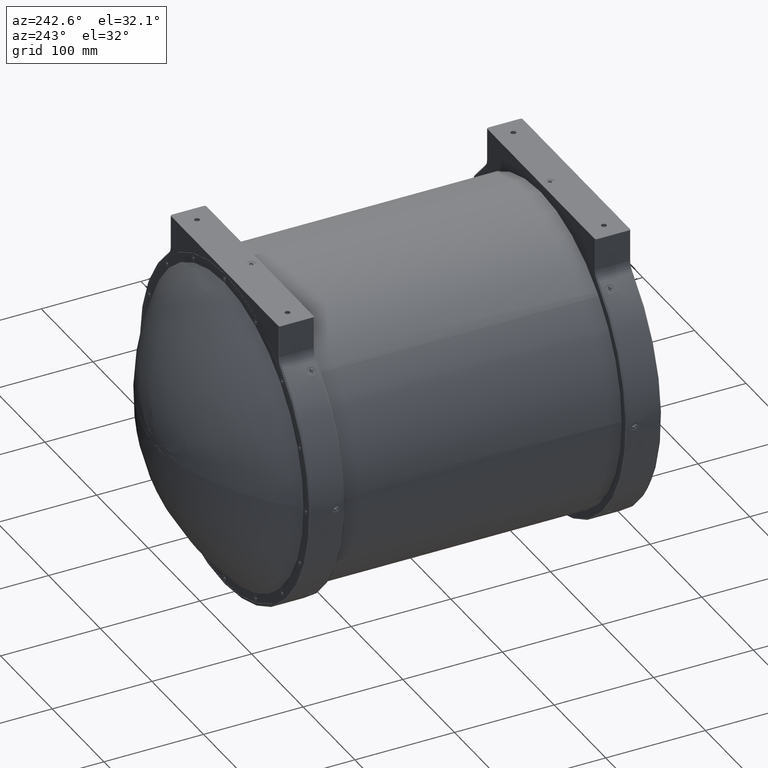
[diagram: clean part render]
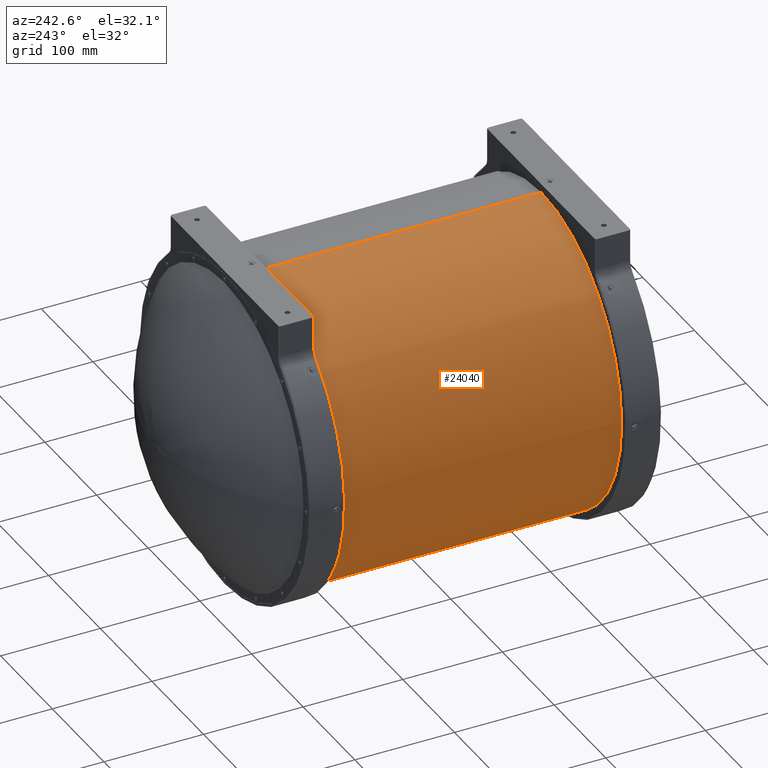
[diagram: same view with one face highlighted and labeled with its STEP entity id]
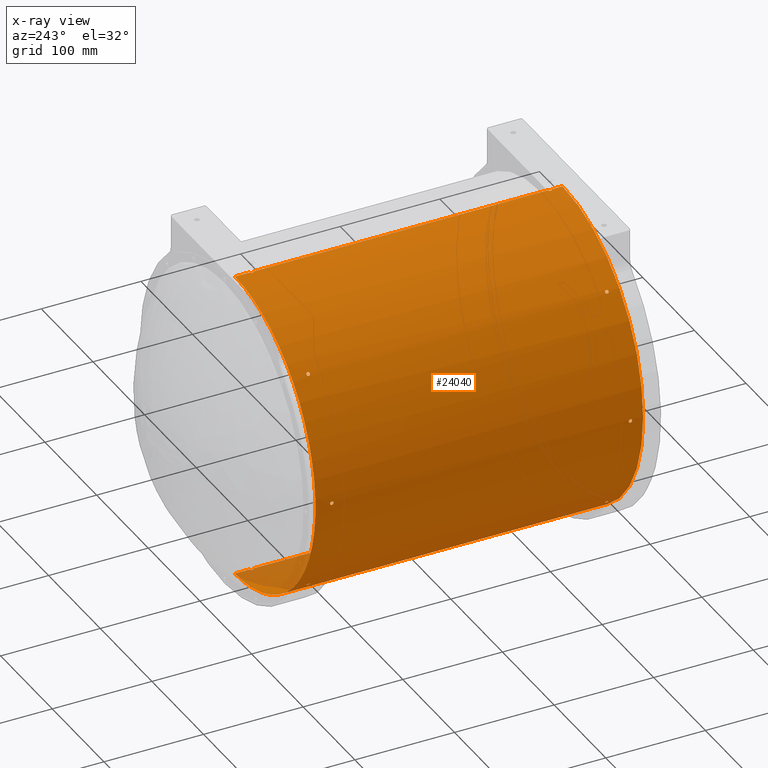
[diagram: x-ray of the same camera — body ghosted, the highlighted face saturated]
A machine part, auxiliary view. The second image highlights one B-rep face of the part: STEP entity #24040.
The next image is the same camera in x-ray: the body ghosted, the highlighted face saturated — about 1% of this face is hidden behind the body in this view.
In plain terms, the highlighted cylindrical surface (partial cylindrical patch) has radius 156.21 mm, axis along (-0, -1, 0).
Its self-contained STEP definition (entity closure, byte-faithful):
#24 = CARTESIAN_POINT ( 'NONE',  ( -156.2028262667691649, 147.7235107876475411, -1.498358640530710106 ) ) ;
#71 = CARTESIAN_POINT ( 'NONE',  ( -110.7735063030128231, -152.8019069854859140, 110.1399413045381266 ) ) ;
#171 = CARTESIAN_POINT ( 'NONE',  ( -156.2100021122912210, 150.3173910381696601, 0.2263052806837820008 ) ) ;
#307 = CARTESIAN_POINT ( 'NONE',  ( -111.0677932016801464, -152.6286719375719656, 109.8431526007023677 ) ) ;
#456 = ORIENTED_EDGE ( 'NONE', *, *, #13050, .T. ) ;
#498 = CARTESIAN_POINT ( 'NONE',  ( -156.2090381173207447, -149.4915282858786156, -0.5580436820609175896 ) ) ;
#518 = B_SPLINE_CURVE_WITH_KNOTS ( 'NONE', 3,
 ( #47726, #32031, #20600, #529, #4347, #11989, #12251, #35584, #38871, #39127, #35105, #20082, #47472, #16311 ),
 .UNSPECIFIED., .F., .F.,
 ( 4, 2, 2, 2, 2, 2, 4 ),
 ( 1.548246979587584347E-17, 0.0003375800536208735598, 0.0006751601072417316154, 0.001012740160862589563, 0.001350320214483447401, 0.002025480321725163079, 0.002700640428966878323 ),
 .UNSPECIFIED. ) ;
#529 = CARTESIAN_POINT ( 'NONE',  ( -0.4472023027985397303, -149.4579049754046878, -156.2093988855038731 ) ) ;
#562 = CARTESIAN_POINT ( 'NONE',  ( -111.6099563456899375, -151.6868013781503635, -109.2921937948843265 ) ) ;
#597 = CARTESIAN_POINT ( 'NONE',  ( -110.7736539763492090, -149.4581748197769855, 110.1397924001192905 ) ) ;
#640 = ORIENTED_EDGE ( 'NONE', *, *, #39467, .T. ) ;
#819 = CARTESIAN_POINT ( 'NONE',  ( -109.3925781383677247, -151.9964892123524862, -111.5115772491055708 ) ) ;
#857 = CARTESIAN_POINT ( 'NONE',  ( -109.2290832658674873, -151.1299999999999955, 111.6717129307963461 ) ) ;
#949 = CARTESIAN_POINT ( 'NONE',  ( -110.8510666071687609, 150.2284717141214117, 110.0618736636020003 ) ) ;
#997 = CARTESIAN_POINT ( 'NONE',  ( -110.5363769653856565, 146.8627601767385329, 110.3779242356251302 ) ) ;
#1013 = CARTESIAN_POINT ( 'NONE',  ( -156.2099989337129387, -149.4028964362973397, -0.1153326924570990814 ) ) ;
#1325 = ORIENTED_EDGE ( 'NONE', *, *, #29615, .T. ) ;
#1351 = CARTESIAN_POINT ( 'NONE',  ( -110.2962399435458849, 150.3058563431194727, -110.6178816445562205 ) ) ;
#1373 = CARTESIAN_POINT ( 'NONE',  ( -110.3755970062426144, -149.4028964362973113, -110.5387020641008604 ) ) ;
#1412 = DIRECTION ( 'NONE',  ( 1.225952931808312809E-39, 1.000000000000000000, -2.208461945956740964E-23 ) ) ;
#1570 = CARTESIAN_POINT ( 'NONE',  ( -109.2290832658651567, -151.1299999999999955, -111.6717129307986340 ) ) ;
#1572 = CARTESIAN_POINT ( 'NONE',  ( -111.6638822240538076, 148.3636653109581687, -109.2370907159882165 ) ) ;
#1610 = CARTESIAN_POINT ( 'NONE',  ( -109.6476461208425945, -149.8281516386314820, 111.2607934779036043 ) ) ;
#1741 = CARTESIAN_POINT ( 'NONE',  ( -156.2039761065398125, -152.1835754937822571, -1.373266488951562447 ) ) ;
#1790 = EDGE_CURVE ( 'NONE', #17136, #49954, #35921, .T. ) ;
#1987 = CARTESIAN_POINT ( 'NONE',  ( -156.2064732725650629, -152.5108687770584197, 1.061704030803598986 ) ) ;
#2178 = CARTESIAN_POINT ( 'NONE',  ( -109.3541355124473569, 147.8240119449709482, 111.5492672603036937 ) ) ;
#2230 = CARTESIAN_POINT ( 'NONE',  ( -0.4472023027985211896, 150.2620950245953679, -156.2093988855037878 ) ) ;
#2259 = CARTESIAN_POINT ( 'NONE',  ( -156.2039856835585852, -150.0671507032394061, 1.380006256348528471 ) ) ;
#2826 = CARTESIAN_POINT ( 'NONE',  ( -156.2058582182974646, 147.2877874764301112, -1.140377712528714227 ) ) ;
#3082 = CARTESIAN_POINT ( 'NONE',  ( -110.7772728753817546, 146.9082098580237812, -110.1362933988530273 ) ) ;
#3174 = CARTESIAN_POINT ( 'NONE',  ( -1.053191725956694080, -149.7563981374004243, 156.2064778509623295 ) ) ;
#3226 = CARTESIAN_POINT ( 'NONE',  ( -1.140795661588198673, 147.2881555685765704, -156.2058551454691724 ) ) ;
#3230 = CARTESIAN_POINT ( 'NONE',  ( -156.2004509601686095, 148.8181905841733794, 1.727199999998348945 ) ) ;
#3330 = CARTESIAN_POINT ( 'NONE',  ( -156.2004509601684390, 148.4772726743486260, -1.727200000001620550 ) ) ;
#3383 = CARTESIAN_POINT ( 'NONE',  ( -109.3541355124473995, -151.8959880550291075, 111.5492672603037221 ) ) ;
#3414 = B_SPLINE_CURVE_WITH_KNOTS ( 'NONE', 3,
 ( #20155, #47036, #43751, #28033, #19896, #39185, #35397, #16378, #42993, #39430, #597, #32609, #16116, #20663, #8737, #12809, #36162, #47285, #1610, #8493, #40178, #17126, #48054, #857 ),
 .UNSPECIFIED., .F., .F.,
 ( 4, 2, 2, 2, 2, 2, 2, 2, 2, 2, 2, 4 ),
 ( 0.005400058096633743657, 0.006074912959233787907, 0.006749767821833832157, 0.007087195253133874231, 0.007424622684433915439, 0.007762050115733956646, 0.008099477547033998720, 0.008774332409634051644, 0.009111759840934093718, 0.009449187272234135793, 0.01012404213483426157, 0.01079889699743438909 ),
 .UNSPECIFIED. ) ;
#3474 = CARTESIAN_POINT ( 'NONE',  ( -1.552581274098413067, 147.8248137191235685, -156.2022902013604266 ) ) ;
#3541 = CARTESIAN_POINT ( 'NONE',  ( -0.7653915209743575865, -152.6824901493119455, -156.2081599290962970 ) ) ;
#3574 = CARTESIAN_POINT ( 'NONE',  ( -156.2005759366097379, 148.3636653109581687, 1.716000731879402608 ) ) ;
#3795 = CARTESIAN_POINT ( 'NONE',  ( -1.727199999999988744, 148.5900000000000318, 156.2004509601685243 ) ) ;
#3971 = CARTESIAN_POINT ( 'NONE',  ( -156.2099989337128818, 150.3171035637027444, -0.1153326924571011214 ) ) ;
#4150 = ORIENTED_EDGE ( 'NONE', *, *, #9742, .F. ) ;
#4220 = CARTESIAN_POINT ( 'NONE',  ( -1.498465602352538006, 147.7236947455537006, -156.2028252380436300 ) ) ;
#4255 = CARTESIAN_POINT ( 'NONE',  ( -111.2621600401552229, 149.8901269966932546, 109.6462592779403877 ) ) ;
#4347 = CARTESIAN_POINT ( 'NONE',  ( -0.5569247132918760945, -149.4911345978756287, -156.2090422438848236 ) ) ;
#4405 = CARTESIAN_POINT ( 'NONE',  ( -109.4761629639093883, 149.6511050157888008, -111.4296152936251900 ) ) ;
#4428 = CARTESIAN_POINT ( 'NONE',  ( -109.2290832658651567, -151.1299999999999955, -111.6717129307986340 ) ) ;
#4478 = FACE_BOUND ( 'NONE', #24288, .T. ) ;
#4654 = CARTESIAN_POINT ( 'NONE',  ( -111.6396599972232906, 149.0448711270602473, -109.2618774586936752 ) ) ;
#4683 = CARTESIAN_POINT ( 'NONE',  ( -109.3843244818454679, -150.2617057355560348, -111.5196891020483037 ) ) ;
#4803 = CARTESIAN_POINT ( 'NONE',  ( -110.1362933988526294, 146.9082098580237812, 110.7772728753821099 ) ) ;
#4823 = CARTESIAN_POINT ( 'NONE',  ( -156.2039738091945651, -150.0688949842112834, -1.381299389066433347 ) ) ;
#5021 = CARTESIAN_POINT ( 'NONE',  ( -110.7736539763492374, 150.2618251802230134, 110.1397924001192905 ) ) ;
#5054 = CARTESIAN_POINT ( 'NONE',  ( -156.2076278151984923, -152.6286719375719656, -0.8659516734680324790 ) ) ;
#5057 = VERTEX_POINT ( 'NONE', #47541 ) ;
#5167 = EDGE_CURVE ( 'NONE', #30156, #37226, #3414, .T. ) ;
#5291 = CARTESIAN_POINT ( 'NONE',  ( -0.2270271697277373435, -152.8459334078347638, 156.2098742722328666 ) ) ;
#5414 = DIRECTION ( 'NONE',  ( 1.225952931808312809E-39, 1.000000000000000000, -2.208461945956740964E-23 ) ) ;
#5868 = ORIENTED_EDGE ( 'NONE', *, *, #9165, .T. ) ;
#6004 = CARTESIAN_POINT ( 'NONE',  ( -111.4239367999494164, 147.5364245062177417, 109.4818447065219971 ) ) ;
#6058 = CARTESIAN_POINT ( 'NONE',  ( -1.509757162884296067, 149.4586205127267817, -156.2027277128671869 ) ) ;
#6147 = CARTESIAN_POINT ( 'NONE',  ( -109.5329206299458491, 147.4489867199344815, -111.3737397294175508 ) ) ;
#6241 = CARTESIAN_POINT ( 'NONE',  ( -111.6717129307982646, -151.1299999999999955, 109.2290832658655546 ) ) ;
#6305 = CARTESIAN_POINT ( 'NONE',  ( -1.381091413632243192, 149.6514247501400519, -156.2039758715172866 ) ) ;
#6358 = CARTESIAN_POINT ( 'NONE',  ( 1.586683483317778715E-19, -152.8571999999999775, -156.2100000000000080 ) ) ;
#6619 = CARTESIAN_POINT ( 'NONE',  ( -1.671773216105339133, -151.5784898101725844, -156.2010555723036589 ) ) ;
#6625 = CARTESIAN_POINT ( 'NONE',  ( -1.301844431711968841, 147.4492043387436127, 156.2045959606384145 ) ) ;
#6867 = ORIENTED_EDGE ( 'NONE', *, *, #30757, .T. ) ;
#6891 = CARTESIAN_POINT ( 'NONE',  ( -156.2064779758482871, 147.2163946913188113, -1.053137376229336342 ) ) ;
#6902 = CARTESIAN_POINT ( 'NONE',  ( -110.3779242356247750, 146.8627601767385613, -110.5363769653860544 ) ) ;
#6937 = CARTESIAN_POINT ( 'NONE',  ( -1.727199999999988744, 148.5900000000000318, 156.2004509601685243 ) ) ;
#6965 = ORIENTED_EDGE ( 'NONE', *, *, #26035, .T. ) ;
#6980 = CARTESIAN_POINT ( 'NONE',  ( -1.727199999999988744, -151.1299999999999955, 156.2004509601685243 ) ) ;
#7140 = CARTESIAN_POINT ( 'NONE',  ( -156.2100004403222329, 146.8627601767385897, -0.1120429997114593124 ) ) ;
#7194 = CARTESIAN_POINT ( 'NONE',  ( -109.2921937948839428, -151.6868013781503919, 111.6099563456903354 ) ) ;
#7252 = CARTESIAN_POINT ( 'NONE',  ( -111.6717129307982788, 148.4772726743486828, 109.2290832658655688 ) ) ;
#7300 = CARTESIAN_POINT ( 'NONE',  ( -1.373386783996638272, 147.5365804744270690, -156.2039750462509176 ) ) ;
#7403 = CARTESIAN_POINT ( 'NONE',  ( -156.2099991157564318, 146.8628799720358984, 0.2259226690286997297 ) ) ;
#7419 = ORIENTED_EDGE ( 'NONE', *, *, #10697, .T. ) ;
#7435 = B_SPLINE_CURVE_WITH_KNOTS ( 'NONE', 3,
 ( #11062, #30862, #46543, #11812, #34655, #19164, #3174, #34176, #49617, #7503, #14878, #30351, #46308, #18925 ),
 .UNSPECIFIED., .F., .F.,
 ( 4, 2, 2, 2, 2, 2, 4 ),
 ( 0.005400058096633764473, 0.006075271799161369168, 0.006750485501688972996, 0.007088092352952775343, 0.007425699204216578558, 0.007763306055480380038, 0.008100912906744183253 ),
 .UNSPECIFIED. ) ;
#7503 = CARTESIAN_POINT ( 'NONE',  ( -0.5569547802417852411, -149.4911531731557375, 156.2090420633101644 ) ) ;
#7575 = DIRECTION ( 'NONE',  ( -1.225952931808312809E-39, -1.000000000000000000, 2.208461945956740964E-23 ) ) ;
#8061 = FACE_BOUND ( 'NONE', #29365, .T. ) ;
#8149 = CARTESIAN_POINT ( 'NONE',  ( -156.2064732778160874, -149.7569174398355472, -1.053862821811478279 ) ) ;
#8199 = CARTESIAN_POINT ( 'NONE',  ( -111.3737397294171956, -152.2710132800655458, 109.5329206299462612 ) ) ;
#8264 = CARTESIAN_POINT ( 'NONE',  ( 1.586683483317778715E-19, -152.8571999999999775, -156.2100000000000080 ) ) ;
#8302 = VERTEX_POINT ( 'NONE', #45757 ) ;
#8331 = CARTESIAN_POINT ( 'NONE',  ( -110.6178816445559079, 150.3058563431195296, 110.2962399435463112 ) ) ;
#8386 = VECTOR ( 'NONE', #35453, 1000.000000000000000 ) ;
#8395 = CARTESIAN_POINT ( 'NONE',  ( -156.2076386319855317, -149.6302010448472402, 0.8640241277248327245 ) ) ;
#8424 = VERTEX_POINT ( 'NONE', #19854 ) ;
#8493 = CARTESIAN_POINT ( 'NONE',  ( -109.4770857432665849, -150.0671507032394061, 111.4287093071547901 ) ) ;
#8495 = CARTESIAN_POINT ( 'NONE',  ( -111.4287093071543779, 149.6528492967605644, -109.4770857432669686 ) ) ;
#8574 = CARTESIAN_POINT ( 'NONE',  ( -111.1998500677220534, 149.9630825601645370, 109.7094629722358832 ) ) ;
#8621 = CARTESIAN_POINT ( 'NONE',  ( -109.8410813376912074, 147.0804540479585683, 111.0699966683699813 ) ) ;
#8737 = CARTESIAN_POINT ( 'NONE',  ( -110.1382225532304773, -149.4472505971303065, 110.7753579310293901 ) ) ;
#8817 = VERTEX_POINT ( 'NONE', #19740 ) ;
#8856 = CARTESIAN_POINT ( 'NONE',  ( -0.4484898102287857014, -152.8017732160909361, 156.2093954228513155 ) ) ;
#8956 = EDGE_CURVE ( 'NONE', #9997, #42347, #7435, .T. ) ;
#9040 = CARTESIAN_POINT ( 'NONE',  ( -110.1397924001188358, -149.4581748197769855, -110.7736539763495784 ) ) ;
#9165 = EDGE_CURVE ( 'NONE', #5057, #13985, #17049, .T. ) ;
#9221 = CARTESIAN_POINT ( 'NONE',  ( -110.0635578030799451, -152.7692846009375387, -110.8493945716811311 ) ) ;
#9282 = CARTESIAN_POINT ( 'NONE',  ( -111.1983218982105512, -149.7552676823008824, -109.7110118069112588 ) ) ;
#9506 = CARTESIAN_POINT ( 'NONE',  ( -109.8430979159568892, 150.0886583074510838, -111.0678475570934580 ) ) ;
#9632 = B_SPLINE_CURVE_WITH_KNOTS ( 'NONE', 3,
 ( #47190, #24117, #11959, #27439, #4823, #42893, #8149, #35822, #19806, #498, #16023, #31501, #1013, #16526, #46933, #43155, #8395, #32000, #40593, #2259, #47686, #25630, #48196, #36312 ),
 .UNSPECIFIED., .F., .F.,
 ( 4, 2, 2, 2, 2, 2, 2, 2, 2, 2, 2, 4 ),
 ( 0.005400058096633751463, 0.006074912959233777499, 0.006749767821833802667, 0.007087195253133844741, 0.007424622684433888550, 0.007762050115733930625, 0.008099477547033974434, 0.008774332409634058583, 0.009111759840934118004, 0.009449187272234175691, 0.01012404213483429280, 0.01079889699743440991 ),
 .UNSPECIFIED. ) ;
#9646 = VERTEX_POINT ( 'NONE', #37535 ) ;
#9723 = CARTESIAN_POINT ( 'NONE',  ( -109.9150613459393782, -152.6827769953781342, -110.9966410415132145 ) ) ;
#9727 = CARTESIAN_POINT ( 'NONE',  ( -109.2290832658651567, 148.5900000000000318, -111.6717129307986340 ) ) ;
#9742 = EDGE_CURVE ( 'NONE', #48343, #42347, #27102, .T. ) ;
#9890 = CARTESIAN_POINT ( 'NONE',  ( -1.681929837410151451, 149.0427475102522692, -156.2009687026717586 ) ) ;
#9892 = CARTESIAN_POINT ( 'NONE',  ( -156.2004509601684958, -151.1299999999999955, -1.727200000001620550 ) ) ;
#9977 = ORIENTED_EDGE ( 'NONE', *, *, #8956, .T. ) ;
#9997 = VERTEX_POINT ( 'NONE', #6980 ) ;
#10188 = VERTEX_POINT ( 'NONE', #38687 ) ;
#10346 = EDGE_CURVE ( 'NONE', #37402, #20138, #42891, .T. ) ;
#10366 = CARTESIAN_POINT ( 'NONE',  ( -1.727199999999988966, 148.8153656751034646, -156.2004509601685527 ) ) ;
#10419 = CARTESIAN_POINT ( 'NONE',  ( -0.2271569661427746134, -152.8459096467953771, -156.2098740137016080 ) ) ;
#10426 = CARTESIAN_POINT ( 'NONE',  ( -0.1126318184970654251, 146.8628000000000497, 156.2100000000000080 ) ) ;
#10640 = ORIENTED_EDGE ( 'NONE', *, *, #37934, .T. ) ;
#10697 = EDGE_CURVE ( 'NONE', #8424, #47079, #32434, .T. ) ;
#10727 = CARTESIAN_POINT ( 'NONE',  ( -156.2039717984526419, 147.5370332223728553, 1.373762686170724834 ) ) ;
#10964 = CARTESIAN_POINT ( 'NONE',  ( -156.2022940877953943, 147.8240119449709482, 1.552192544506816985 ) ) ;
#11017 = CARTESIAN_POINT ( 'NONE',  ( -110.9966410415128877, -152.6827769953781626, 109.9150613459398045 ) ) ;
#11031 = CARTESIAN_POINT ( 'NONE',  ( 1.913004898591906032E-14, -163.8300000000000125, 156.2100000000000080 ) ) ;
#11062 = CARTESIAN_POINT ( 'NONE',  ( -1.727199999999988744, -151.1299999999999955, 156.2004509601685243 ) ) ;
#11116 = CARTESIAN_POINT ( 'NONE',  ( -156.2064878902936300, 149.9647323176992018, 1.051687051285158381 ) ) ;
#11176 = CARTESIAN_POINT ( 'NONE',  ( -1.373386783996654925, -152.1834195255730151, -156.2039750462509176 ) ) ;
#11260 = VECTOR ( 'NONE', #19711, 1000.000000000000000 ) ;
#11264 = CARTESIAN_POINT ( 'NONE',  ( -1.681917172236150337, 149.0428070712727333, 156.2009688499996116 ) ) ;
#11267 = CARTESIAN_POINT ( 'NONE',  ( -109.3920280049857752, -151.9952018683496249, 111.5121170029791386 ) ) ;
#11375 = CARTESIAN_POINT ( 'NONE',  ( -1.053372247426556552, 147.2165796638547874, -156.2064763548545727 ) ) ;
#11450 = CARTESIAN_POINT ( 'NONE',  ( -1.727199999999989632, 148.4772981997370778, 156.2004509601685243 ) ) ;
#11547 = CARTESIAN_POINT ( 'NONE',  ( -111.6717129307960050, -151.2441210577202071, -109.2290832658679136 ) ) ;
#11649 = FACE_BOUND ( 'NONE', #39787, .T. ) ;
#11660 = CARTESIAN_POINT ( 'NONE',  ( -109.7110118069109319, 149.9647323176991733, 111.1983218982109065 ) ) ;
#11812 = CARTESIAN_POINT ( 'NONE',  ( -1.509704757394329855, -150.2612818848680831, 156.2027282303298819 ) ) ;
#11882 = DIRECTION ( 'NONE',  ( 1.015706816131500148E-21, 0.000000000000000000, -1.000000000000000000 ) ) ;
#11913 = AXIS2_PLACEMENT_3D ( 'NONE', #42327, #7575, #11882 ) ;
#11959 = CARTESIAN_POINT ( 'NONE',  ( -156.2009682793644458, -150.6774322104715509, -1.681965622762339185 ) ) ;
#11989 = CARTESIAN_POINT ( 'NONE',  ( -0.7661489164262594853, -149.5778850621121592, -156.2081561882282870 ) ) ;
#12007 = CARTESIAN_POINT ( 'NONE',  ( -111.6329383435717517, -151.5785213442038071, 109.2687131068551594 ) ) ;
#12251 = CARTESIAN_POINT ( 'NONE',  ( -0.8653792421581814054, -149.6309710566052047, -156.2076311696496305 ) ) ;
#12292 = EDGE_CURVE ( 'NONE', #49954, #17136, #25585, .T. ) ;
#12319 = CARTESIAN_POINT ( 'NONE',  ( -110.3755970062426286, 150.3171035637027728, -110.5387020641008604 ) ) ;
#12403 = CARTESIAN_POINT ( 'NONE',  ( -111.4296152936248205, 149.6511050157887723, 109.4761629639097720 ) ) ;
#12425 = CARTESIAN_POINT ( 'NONE',  ( -1.498459695046019169, -151.9963111760197307, 156.2028252868140044 ) ) ;
#12447 = CARTESIAN_POINT ( 'NONE',  ( -109.4814907958255361, 147.5370332223728553, 111.4242846180906241 ) ) ;
#12525 = CARTESIAN_POINT ( 'NONE',  ( -109.4818447065216276, -152.1835754937822855, -111.4239367999498000 ) ) ;
#12611 = LINE ( 'NONE', #39747, #8386 ) ;
#12644 = CARTESIAN_POINT ( 'NONE',  ( -109.2618774586933057, 149.0448711270602757, 111.6396599972236601 ) ) ;
#12691 = CARTESIAN_POINT ( 'NONE',  ( -109.2290832658675015, 148.4758789422798486, 111.6717129307963461 ) ) ;
#12809 = CARTESIAN_POINT ( 'NONE',  ( -109.9150730698621174, -149.5772003740210607, 110.9966296111283697 ) ) ;
#12810 = CARTESIAN_POINT ( 'NONE',  ( -110.9966296111280428, 150.1427996259789381, -109.9150730698625154 ) ) ;
#12934 = AXIS2_PLACEMENT_3D ( 'NONE', #13139, #1412, #24022 ) ;
#12935 = CARTESIAN_POINT ( 'NONE',  ( -156.2014061644491676, -151.6862051772860980, -1.639113092390818593 ) ) ;
#13050 = EDGE_CURVE ( 'NONE', #27683, #8302, #15799, .T. ) ;
#13074 = CARTESIAN_POINT ( 'NONE',  ( -111.5188464337171865, 149.4603876011435375, -109.3851838238945930 ) ) ;
#13139 = CARTESIAN_POINT ( 'NONE',  ( 0.000000000000000000, 165.0999999999999943, -3.646170672595608975E-21 ) ) ;
#13285 = CARTESIAN_POINT ( 'NONE',  ( -111.3731349105334374, -152.2718644074448662, -109.5335349202495507 ) ) ;
#13529 = CARTESIAN_POINT ( 'NONE',  ( -111.2053946360600918, -152.5108687770583913, -109.7039183964718632 ) ) ;
#13533 = CARTESIAN_POINT ( 'NONE',  ( -111.5121170029787834, 147.7247981316504308, -109.3920280049861873 ) ) ;
#13692 = CARTESIAN_POINT ( 'NONE',  ( -156.2094807686151796, -152.8117901419762745, 0.4532409344551296404 ) ) ;
#13885 = VECTOR ( 'NONE', #44406, 1000.000000000000000 ) ;
#13957 = CARTESIAN_POINT ( 'NONE',  ( -156.2093968585983248, -152.8019069854859140, -0.4479981067441640707 ) ) ;
#13985 = VERTEX_POINT ( 'NONE', #8264 ) ;
#14138 = CARTESIAN_POINT ( 'NONE',  ( -111.6101015125172609, 148.0337948227138725, 109.2920455469952117 ) ) ;
#14230 = LINE ( 'NONE', #48974, #13885 ) ;
#14487 = CARTESIAN_POINT ( 'NONE',  ( -0.8663111763425555001, -152.6284596948633236, -156.2076257845215537 ) ) ;
#14524 = CARTESIAN_POINT ( 'NONE',  ( -156.2098751123189970, 146.8739904874005902, -0.2264655038423943334 ) ) ;
#14536 = CARTESIAN_POINT ( 'NONE',  ( -111.4242846180903115, 147.5370332223728838, -109.4814907958259340 ) ) ;
#14619 = EDGE_CURVE ( 'NONE', #46583, #9646, #42329, .T. ) ;
#14665 = VERTEX_POINT ( 'NONE', #38601 ) ;
#14677 = CARTESIAN_POINT ( 'NONE',  ( -1.727199999999988744, 148.5900000000000318, 156.2004509601685243 ) ) ;
#14702 = ORIENTED_EDGE ( 'NONE', *, *, #12292, .T. ) ;
#14759 = CARTESIAN_POINT ( 'NONE',  ( -1.552490149428414457, 147.8246084792720865, 156.2022911231376838 ) ) ;
#14793 = EDGE_CURVE ( 'NONE', #47079, #8424, #9632, .T. ) ;
#14878 = CARTESIAN_POINT ( 'NONE',  ( -0.4470467396404608773, -149.4578601548796541, 156.2093993658458544 ) ) ;
#15027 = CARTESIAN_POINT ( 'NONE',  ( -156.2010518427238992, 148.1428968394162382, 1.672119812414899265 ) ) ;
#15183 = CARTESIAN_POINT ( 'NONE',  ( -156.2058556616122758, 149.8918483613686021, 1.140667435230682480 ) ) ;
#15479 = CARTESIAN_POINT ( 'NONE',  ( -109.6476461208426514, 149.8918483613686305, 111.2607934779036185 ) ) ;
#15690 = CARTESIAN_POINT ( 'NONE',  ( -156.2076386319855601, 150.0897989551527871, 0.8640241277248338347 ) ) ;
#15747 = CARTESIAN_POINT ( 'NONE',  ( -0.1126318184970656472, -152.8571999999999491, 156.2100000000000080 ) ) ;
#15799 = B_SPLINE_CURVE_WITH_KNOTS ( 'NONE', 3,
 ( #6937, #45990, #11264, #22933, #22421, #37910, #18625, #30301, #26751, #42195, #26492, #41932, #46261, #38410 ),
 .UNSPECIFIED., .F., .F.,
 ( 4, 2, 2, 2, 2, 2, 4 ),
 ( 0.005400058096633771412, 0.006075271799161379577, 0.006750485501688987741, 0.007088092352952790956, 0.007425699204216595038, 0.007763306055480398253, 0.008100912906744202335 ),
 .UNSPECIFIED. ) ;
#15834 = CARTESIAN_POINT ( 'NONE',  ( -111.5115772491052013, -151.9964892123525146, 109.3925781383681368 ) ) ;
#16023 = CARTESIAN_POINT ( 'NONE',  ( -156.2093959880915861, -149.4581748197769855, -0.4482078188860624257 ) ) ;
#16116 = CARTESIAN_POINT ( 'NONE',  ( -110.5387020641004483, -149.4028964362972829, 110.3755970062429554 ) ) ;
#16117 = CARTESIAN_POINT ( 'NONE',  ( -111.2607934779032206, 149.8918483613686305, -109.6476461208430351 ) ) ;
#16311 = CARTESIAN_POINT ( 'NONE',  ( -1.727199999999988744, -151.1299999999999955, -156.2004509601684958 ) ) ;
#16378 = CARTESIAN_POINT ( 'NONE',  ( -111.0678475570930885, -149.6313416925489719, 109.8430979159573155 ) ) ;
#16391 = CARTESIAN_POINT ( 'NONE',  ( 1.913004898591906032E-14, 165.0999999999999943, 156.2100000000000080 ) ) ;
#16526 = CARTESIAN_POINT ( 'NONE',  ( -156.2100021122912210, -149.4026089618303956, 0.2263052806837898556 ) ) ;
#16833 = CARTESIAN_POINT ( 'NONE',  ( -111.0699966683695834, -152.6395459520414875, -109.8410813376915911 ) ) ;
#16894 = CARTESIAN_POINT ( 'NONE',  ( -111.4287093071544348, -150.0671507032394629, -109.4770857432669970 ) ) ;
#16952 = CARTESIAN_POINT ( 'NONE',  ( 1.913004898591906032E-14, 165.0999999999999943, 156.2100000000000080 ) ) ;
#16981 = CARTESIAN_POINT ( 'NONE',  ( -1.301844431711968175, -152.2707956612563862, 156.2045959606384145 ) ) ;
#17049 = B_SPLINE_CURVE_WITH_KNOTS ( 'NONE', 3,
 ( #41362, #37342, #41099, #6619, #45908, #22853, #49967, #11176, #26167, #30224, #34290, #14487, #3541, #22109, #38333, #10419, #29967, #6358 ),
 .UNSPECIFIED., .F., .F.,
 ( 4, 2, 2, 2, 2, 2, 2, 2, 4 ),
 ( 0.002700640428966878323, 0.003038067637445299868, 0.003375494845923721413, 0.003712922054402142957, 0.004050349262880564502, 0.004387776471358986047, 0.004725203679837406724, 0.005062630888315827402, 0.005400058096794248946 ),
 .UNSPECIFIED. ) ;
#17126 = CARTESIAN_POINT ( 'NONE',  ( -109.2618774586933057, -150.6751288729397515, 111.6396599972236601 ) ) ;
#17136 = VERTEX_POINT ( 'NONE', #47533 ) ;
#17246 = CARTESIAN_POINT ( 'NONE',  ( -0.8653792421581784078, 150.0890289433947942, -156.2076311696496305 ) ) ;
#17291 = EDGE_LOOP ( 'NONE', ( #26399, #10640 ) ) ;
#17482 = CARTESIAN_POINT ( 'NONE',  ( -156.2058582182974078, -152.4322125235698877, -1.140377712528710452 ) ) ;
#17735 = CARTESIAN_POINT ( 'NONE',  ( -1.053172038160511859, 149.9636075363547434, -156.2064779243296471 ) ) ;
#17737 = CARTESIAN_POINT ( 'NONE',  ( -156.2028189273484031, -151.9952018683496249, 1.499129307199825067 ) ) ;
#17913 = VERTEX_POINT ( 'NONE', #24362 ) ;
#18294 = CARTESIAN_POINT ( 'NONE',  ( -0.2270271697277385925, 146.8740665921652067, 156.2098742722328666 ) ) ;
#18542 = CARTESIAN_POINT ( 'NONE',  ( -1.053419525944622182, 147.2166132162832071, 156.2064760519565993 ) ) ;
#18569 = CARTESIAN_POINT ( 'NONE',  ( -156.2014083430889002, 148.0331986218496354, 1.638905616855142799 ) ) ;
#18583 = CARTESIAN_POINT ( 'NONE',  ( -111.3731349105334516, 147.4481355925551611, -109.5335349202495649 ) ) ;
#18599 = ORIENTED_EDGE ( 'NONE', *, *, #49212, .T. ) ;
#18625 = CARTESIAN_POINT ( 'NONE',  ( -1.053191725956689861, 149.9636018625996314, 156.2064778509623579 ) ) ;
#18806 = B_SPLINE_CURVE_WITH_KNOTS ( 'NONE', 3,
 ( #38694, #47037, #24979, #32348, #4405, #35399, #39696, #9506, #44236, #47538, #43494, #1351, #12319, #19897, #43752, #12810, #24493, #48055, #16117, #8495, #13074, #4654, #31605, #32095 ),
 .UNSPECIFIED., .F., .F.,
 ( 4, 2, 2, 2, 2, 2, 2, 2, 2, 2, 2, 4 ),
 ( 0.005400058096633733248, 0.006074912959233849490, 0.006749767821833965731, 0.007087195253133994795, 0.007424622684434023859, 0.007762050115734052055, 0.008099477547034081987, 0.008774332409634110624, 0.009111759840934126678, 0.009449187272234144466, 0.01012404213483425811, 0.01079889699743437001 ),
 .UNSPECIFIED. ) ;
#18881 = CARTESIAN_POINT ( 'NONE',  ( -109.4814907958255645, -152.1829667776271435, 111.4242846180906525 ) ) ;
#18925 = CARTESIAN_POINT ( 'NONE',  ( 1.913004899735144713E-14, -149.4028000000000134, 156.2100000000000080 ) ) ;
#19071 = CARTESIAN_POINT ( 'NONE',  ( -156.2076278151985491, 147.0913280624280333, -0.8659516734680366978 ) ) ;
#19164 = CARTESIAN_POINT ( 'NONE',  ( -1.142029602314410974, -149.8293539248758179, 156.2058456367572603 ) ) ;
#19246 = EDGE_CURVE ( 'NONE', #13985, #37402, #33379, .T. ) ;
#19462 = CARTESIAN_POINT ( 'NONE',  ( -0.7653915209743611392, 147.0375098506880533, -156.2081599290962970 ) ) ;
#19466 = CARTESIAN_POINT ( 'NONE',  ( -156.2098734348165294, 150.3058563431195580, -0.2274350278965396877 ) ) ;
#19619 = CARTESIAN_POINT ( 'NONE',  ( -109.7039183964714795, -152.5108687770584197, 111.2053946360604897 ) ) ;
#19708 = CARTESIAN_POINT ( 'NONE',  ( -0.8663111763425448419, 147.0915403051367321, -156.2076257845215537 ) ) ;
#19711 = DIRECTION ( 'NONE',  ( -1.225952931808312809E-39, -1.000000000000000000, 2.208461945956740964E-23 ) ) ;
#19740 = CARTESIAN_POINT ( 'NONE',  ( -1.727199999999988744, 148.5900000000000318, -156.2004509601684958 ) ) ;
#19741 = CARTESIAN_POINT ( 'NONE',  ( -110.5387020641004909, 150.3171035637028012, 110.3755970062430549 ) ) ;
#19798 = CARTESIAN_POINT ( 'NONE',  ( 1.913004902194931345E-14, 146.8628000000000497, 156.2100000000000080 ) ) ;
#19806 = CARTESIAN_POINT ( 'NONE',  ( -156.2081525174061483, -149.5782548789754856, -0.7668698640847100290 ) ) ;
#19849 = CARTESIAN_POINT ( 'NONE',  ( -109.5335349202491528, -152.2718644074448946, 111.3731349105337927 ) ) ;
#19854 = CARTESIAN_POINT ( 'NONE',  ( -156.2004509601685243, -151.1299999999999955, 1.727199999998348057 ) ) ;
#19896 = CARTESIAN_POINT ( 'NONE',  ( -111.4296152936248347, -150.0688949842112265, 109.4761629639098146 ) ) ;
#19897 = CARTESIAN_POINT ( 'NONE',  ( -110.6171737813557030, 150.3173910381696317, -110.2971297841764056 ) ) ;
#19915 = CARTESIAN_POINT ( 'NONE',  ( -110.0618736636016166, -149.4915282858786441, -110.8510666071691730 ) ) ;
#19929 = VERTEX_POINT ( 'NONE', #35689 ) ;
#19970 = CYLINDRICAL_SURFACE ( 'NONE', #11913, 156.2100000000000080 ) ;
#20031 = CARTESIAN_POINT ( 'NONE',  ( -109.2921937948839286, 148.0331986218496354, 111.6099563456903070 ) ) ;
#20082 = CARTESIAN_POINT ( 'NONE',  ( -1.681929837410150341, -150.6772524897477865, -156.2009687026717302 ) ) ;
#20138 = VERTEX_POINT ( 'NONE', #11031 ) ;
#20155 = CARTESIAN_POINT ( 'NONE',  ( -111.6717129307982646, -151.1299999999999955, 109.2290832658655546 ) ) ;
#20177 = CARTESIAN_POINT ( 'NONE',  ( -110.9966296111280002, -149.5772003740210891, -109.9150730698625296 ) ) ;
#20297 = CARTESIAN_POINT ( 'NONE',  ( -109.3920280049857610, 147.7247981316504308, 111.5121170029791244 ) ) ;
#20507 = EDGE_CURVE ( 'NONE', #10188, #17913, #27839, .T. ) ;
#20543 = CARTESIAN_POINT ( 'NONE',  ( -156.2045975493794003, -152.2710132800655742, -1.301655668173885338 ) ) ;
#20600 = CARTESIAN_POINT ( 'NONE',  ( -0.2263855153269407616, -149.4140042921513043, -156.2098749748827800 ) ) ;
#20631 = CARTESIAN_POINT ( 'NONE',  ( -109.2371595325534059, -151.3572084384834113, -111.6638149290422461 ) ) ;
#20663 = CARTESIAN_POINT ( 'NONE',  ( -110.2971297841760645, -149.4026089618303956, 110.6171737813561151 ) ) ;
#20686 = CARTESIAN_POINT ( 'NONE',  ( -110.6171737813556746, -149.4026089618303672, -110.2971297841763771 ) ) ;
#20900 = DIRECTION ( 'NONE',  ( 1.015706816131500148E-21, 0.000000000000000000, -1.000000000000000000 ) ) ;
#21018 = AXIS2_PLACEMENT_3D ( 'NONE', #36155, #5414, #20900 ) ;
#21293 = CARTESIAN_POINT ( 'NONE',  ( -1.140627143453563752, -152.4319920832085700, 156.2058563814759395 ) ) ;
#21302 = CARTESIAN_POINT ( 'NONE',  ( -156.2077212973162261, -152.6395459520414875, 0.8689743638267893866 ) ) ;
#21390 = CARTESIAN_POINT ( 'NONE',  ( -110.3779242356247607, -152.8572398232614091, -110.5363769653860402 ) ) ;
#21489 = CARTESIAN_POINT ( 'NONE',  ( -111.5115772491052013, 147.7235107876475126, 109.3925781383681226 ) ) ;
#21631 = CARTESIAN_POINT ( 'NONE',  ( -109.3539790357602897, 147.8244453144680506, -111.5494206552744600 ) ) ;
#21742 = B_SPLINE_CURVE_WITH_KNOTS ( 'NONE', 3,
 ( #28590, #32371, #39451, #4683, #36184, #32116, #44022, #44254, #28057, #19915, #9040, #47057, #1373, #20686, #39964, #20177, #35682, #9282, #32631, #16894, #48072, #27811, #28822, #47821 ),
 .UNSPECIFIED., .F., .F.,
 ( 4, 2, 2, 2, 2, 2, 2, 2, 2, 2, 2, 4 ),
 ( 0.005400058096633728044, 0.006074912959233785305, 0.006749767821833842565, 0.007087195253133900252, 0.007424622684433957939, 0.007762050115734015626, 0.008099477547034075048, 0.008774332409634131441, 0.009111759840934176985, 0.009449187272234222529, 0.01012404213483428933, 0.01079889699743435787 ),
 .UNSPECIFIED. ) ;
#21898 = CARTESIAN_POINT ( 'NONE',  ( -111.2053946360601344, 147.2091312229416076, -109.7039183964719200 ) ) ;
#22109 = CARTESIAN_POINT ( 'NONE',  ( -0.5560839144090103936, -152.7691523798065987, -156.2090452672144352 ) ) ;
#22114 = CARTESIAN_POINT ( 'NONE',  ( -1.498459695046022055, 147.7236888239803534, 156.2028252868140044 ) ) ;
#22148 = CARTESIAN_POINT ( 'NONE',  ( -109.7099792617364216, 147.2163946913187829, -111.1993404222423578 ) ) ;
#22375 = CARTESIAN_POINT ( 'NONE',  ( -156.2022919086929562, 147.8244453144680506, -1.552411656857364930 ) ) ;
#22421 = CARTESIAN_POINT ( 'NONE',  ( -1.380945636852776603, 149.6515916961104722, 156.2039770939782102 ) ) ;
#22682 = CARTESIAN_POINT ( 'NONE',  ( -111.2605904208653840, -152.4322125235699161, 109.6478527935796734 ) ) ;
#22790 = CARTESIAN_POINT ( 'NONE',  ( -0.5560839144090076180, 146.9508476201934855, -156.2090452672144352 ) ) ;
#22795 = CARTESIAN_POINT ( 'NONE',  ( -156.2009682793644458, 149.0425677895284764, -1.681965622762339185 ) ) ;
#22853 = CARTESIAN_POINT ( 'NONE',  ( -1.552581274098413067, -151.8951862808764588, -156.2022902013604266 ) ) ;
#22889 = CARTESIAN_POINT ( 'NONE',  ( -156.2081628016321986, 147.0372230046218363, -0.7647923371336978748 ) ) ;
#22933 = CARTESIAN_POINT ( 'NONE',  ( -1.509704757394330077, 149.4587181151319157, 156.2027282303299671 ) ) ;
#23031 = CARTESIAN_POINT ( 'NONE',  ( 1.586683481345626452E-19, 146.8628000000000497, -156.2100000000000080 ) ) ;
#23278 = CARTESIAN_POINT ( 'NONE',  ( -156.2027259964964969, 149.4582942644439356, -1.509930803250974618 ) ) ;
#23294 = ORIENTED_EDGE ( 'NONE', *, *, #1790, .T. ) ;
#23309 = CARTESIAN_POINT ( 'NONE',  ( -111.0678475570930601, 150.0886583074510838, 109.8430979159572871 ) ) ;
#23459 = CIRCLE ( 'NONE', #12934, 156.2100000000000080 ) ;
#23571 = B_SPLINE_CURVE_WITH_KNOTS ( 'NONE', 3,
 ( #34533, #10426, #18294, #25918, #30731, #41370, #38084, #18542, #34037, #6625, #49486, #22114, #14759, #34296, #46181, #49733, #11450, #3795 ),
 .UNSPECIFIED., .F., .F.,
 ( 4, 2, 2, 2, 2, 2, 2, 2, 4 ),
 ( 0.002700640428829128702, 0.003038067637304709204, 0.003375494845780289705, 0.003712922054255870206, 0.004050349262731451142, 0.004387776471207031209, 0.004725203679682611277, 0.005062630888158191345, 0.005400058096633771412 ),
 .UNSPECIFIED. ) ;
#23637 = VERTEX_POINT ( 'NONE', #24368 ) ;
#23680 = CARTESIAN_POINT ( 'NONE',  ( -111.6638149290418198, -151.3572084384834397, 109.2371595325537612 ) ) ;
#23851 = CARTESIAN_POINT ( 'NONE',  ( -109.2684557281463924, 148.1428968394162098, 111.6331902447766851 ) ) ;
#24022 = DIRECTION ( 'NONE',  ( -1.015706816131500148E-21, 0.000000000000000000, 1.000000000000000000 ) ) ;
#24040 = ADVANCED_FACE ( 'NONE', ( #47110, #31422, #35002, #4478, #11649, #46850, #8061 ), #19970, .T. ) ;
#24117 = CARTESIAN_POINT ( 'NONE',  ( -156.2004509601684390, -150.9045962506258149, -1.727200000001620772 ) ) ;
#24288 = EDGE_LOOP ( 'NONE', ( #30412, #44038 ) ) ;
#24347 = CARTESIAN_POINT ( 'NONE',  ( -0.8663052547413023774, -152.6284656021867647, 156.2076258332919849 ) ) ;
#24359 = ORIENTED_EDGE ( 'NONE', *, *, #45397, .T. ) ;
#24362 = CARTESIAN_POINT ( 'NONE',  ( -109.2290832658651567, 148.5900000000000318, -111.6717129307986340 ) ) ;
#24366 = CARTESIAN_POINT ( 'NONE',  ( -110.9966410415129019, 147.0372230046218363, 109.9150613459397618 ) ) ;
#24368 = CARTESIAN_POINT ( 'NONE',  ( 1.586683481345626452E-19, 146.8628000000000497, -156.2100000000000080 ) ) ;
#24493 = CARTESIAN_POINT ( 'NONE',  ( -111.0664378696375536, 150.0897989551527871, -109.8445232299919070 ) ) ;
#24639 = EDGE_CURVE ( 'NONE', #24656, #8302, #28309, .T. ) ;
#24656 = VERTEX_POINT ( 'NONE', #16391 ) ;
#24792 = ORIENTED_EDGE ( 'NONE', *, *, #20507, .T. ) ;
#24847 = CARTESIAN_POINT ( 'NONE',  ( -0.1141468986911776257, 150.3171999999999571, -156.2099999999999795 ) ) ;
#24979 = CARTESIAN_POINT ( 'NONE',  ( -109.2614346006652966, 149.0425677895284196, -111.6400931958214784 ) ) ;
#25104 = CARTESIAN_POINT ( 'NONE',  ( -156.2004509601685243, 148.5900000000000318, 1.727199999998348057 ) ) ;
#25202 = CARTESIAN_POINT ( 'NONE',  ( -109.2687131068547757, -151.5785213442038071, -111.6329383435721496 ) ) ;
#25209 = CARTESIAN_POINT ( 'NONE',  ( -110.1399413045377571, 146.9180930145141133, -110.7735063030131784 ) ) ;
#25313 = CARTESIAN_POINT ( 'NONE',  ( -110.7735063030127804, 146.9180930145141133, 110.1399413045381550 ) ) ;
#25405 = EDGE_CURVE ( 'NONE', #26647, #20138, #47616, .T. ) ;
#25539 = VERTEX_POINT ( 'NONE', #4428 ) ;
#25585 = B_SPLINE_CURVE_WITH_KNOTS ( 'NONE', 3,
 ( #29117, #12691, #31984, #23851, #20031, #2178, #20297, #12447, #27922, #47420, #8621, #4803, #35805, #997, #28171, #25313, #43627, #24366, #39829, #40759, #32915, #48364, #6004, #21489, #36975, #14138, #33428, #42261, #7252, #37724 ),
 .UNSPECIFIED., .F., .F.,
 ( 4, 2, 2, 2, 2, 2, 2, 2, 2, 2, 2, 2, 2, 2, 4 ),
 ( 0.000000000000000000, 0.0003375036310396171643, 0.0006750072620792343285, 0.001012510893118851547, 0.001350014524158468657, 0.002025021786237682277, 0.002700029048316896114, 0.003037532679356503250, 0.003375036310396110385, 0.003712539941435717521, 0.004050043572475323789, 0.004387547203514930924, 0.004725050834554538060, 0.005062554465594145195, 0.005400058096633751463 ),
 .UNSPECIFIED. ) ;
#25604 = CARTESIAN_POINT ( 'NONE',  ( -156.2099991157564318, -152.8571200279642426, 0.2259226690286986194 ) ) ;
#25630 = CARTESIAN_POINT ( 'NONE',  ( -156.2009751096130401, -150.6751288729397515, 1.681346157181500267 ) ) ;
#25689 = CARTESIAN_POINT ( 'NONE',  ( -156.2004509601685243, 148.5900000000000318, 1.727199999998348057 ) ) ;
#25918 = CARTESIAN_POINT ( 'NONE',  ( -0.4484898102287876442, 146.9182267839090912, 156.2093954228513155 ) ) ;
#26035 = EDGE_CURVE ( 'NONE', #14665, #25539, #29305, .T. ) ;
#26167 = CARTESIAN_POINT ( 'NONE',  ( -1.301992083534249556, -152.2706271430844254, -156.2045947246213302 ) ) ;
#26399 = ORIENTED_EDGE ( 'NONE', *, *, #14619, .T. ) ;
#26492 = CARTESIAN_POINT ( 'NONE',  ( -0.4470467396404523841, 150.2621398451204300, 156.2093993658458828 ) ) ;
#26524 = ORIENTED_EDGE ( 'NONE', *, *, #39038, .F. ) ;
#26596 = CARTESIAN_POINT ( 'NONE',  ( -156.2009751096130969, 149.0448711270603042, 1.681346157181507595 ) ) ;
#26647 = VERTEX_POINT ( 'NONE', #50132 ) ;
#26751 = CARTESIAN_POINT ( 'NONE',  ( -0.7659597408994556211, 150.1421994795815067, 156.2081570425805808 ) ) ;
#27008 = CARTESIAN_POINT ( 'NONE',  ( -109.8410813376912358, -152.6395459520414875, 111.0699966683699955 ) ) ;
#27015 = ORIENTED_EDGE ( 'NONE', *, *, #10346, .T. ) ;
#27017 = CARTESIAN_POINT ( 'NONE',  ( -111.5492672603033384, -151.8959880550291359, -109.3541355124477974 ) ) ;
#27102 = LINE ( 'NONE', #46596, #11260 ) ;
#27240 = CARTESIAN_POINT ( 'NONE',  ( -110.2973982126018484, -152.8571200279642426, 110.6169011151901032 ) ) ;
#27341 = CARTESIAN_POINT ( 'NONE',  ( -156.2090381173207163, 150.2284717141214401, -0.5580436820609188109 ) ) ;
#27356 = B_SPLINE_CURVE_WITH_KNOTS ( 'NONE', 3,
 ( #30918, #49902, #31161, #42037, #30648, #3474, #4220, #7300, #38010, #3226, #11375, #19708, #19462, #22790, #30403, #31401, #34978, #23031 ),
 .UNSPECIFIED., .F., .F.,
 ( 4, 2, 2, 2, 2, 2, 2, 2, 4 ),
 ( 0.002700640428966834955, 0.003038067637445251296, 0.003375494845923668070, 0.003712922054402084410, 0.004050349262880501185, 0.004387776471358917525, 0.004725203679837332998, 0.005062630888315749339, 0.005400058096794165680 ),
 .UNSPECIFIED. ) ;
#27439 = CARTESIAN_POINT ( 'NONE',  ( -156.2027259964965538, -150.2617057355560632, -1.509930803250973952 ) ) ;
#27488 = CARTESIAN_POINT ( 'NONE',  ( -111.6101015125172466, -151.6862051772860980, 109.2920455469952259 ) ) ;
#27593 = EDGE_LOOP ( 'NONE', ( #6965, #18599 ) ) ;
#27597 = CARTESIAN_POINT ( 'NONE',  ( -156.2081630091948341, 150.1427996259789381, 0.7647759645657641325 ) ) ;
#27683 = VERTEX_POINT ( 'NONE', #14677 ) ;
#27758 = CARTESIAN_POINT ( 'NONE',  ( -111.6638822240538076, -151.3563346890418586, -109.2370907159882165 ) ) ;
#27811 = CARTESIAN_POINT ( 'NONE',  ( -111.6396599972232622, -150.6751288729396663, -109.2618774586936894 ) ) ;
#27839 = B_SPLINE_CURVE_WITH_KNOTS ( 'NONE', 3,
 ( #40151, #36381, #1572, #28770, #44205, #36878, #13533, #14536, #18583, #21898, #33328, #3082, #44459, #6902, #41654, #25209, #29016, #45205, #44960, #22148, #34080, #6147, #37632, #33061, #21631, #33817, #48519, #29758, #37871, #9727 ),
 .UNSPECIFIED., .F., .F.,
 ( 4, 2, 2, 2, 2, 2, 2, 2, 2, 2, 2, 2, 2, 2, 4 ),
 ( 0.000000000000000000, 0.0003375036310396088701, 0.0006750072620792177402, 0.001012510893118826394, 0.001350014524158435480, 0.002025021786237632404, 0.002700029048316829328, 0.003037532679356442535, 0.003375036310396055741, 0.003712539941435668948, 0.004050043572475281288, 0.004387547203514894495, 0.004725050834554507702, 0.005062554465594120909, 0.005400058096633733248 ),
 .UNSPECIFIED. ) ;
#27922 = CARTESIAN_POINT ( 'NONE',  ( -109.5335349202491955, 147.4481355925551895, 111.3731349105338495 ) ) ;
#28033 = CARTESIAN_POINT ( 'NONE',  ( -111.5196891020479200, -150.2617057355560632, 109.3843244818458516 ) ) ;
#28057 = CARTESIAN_POINT ( 'NONE',  ( -109.9135850404982335, -149.5782548789754856, -110.9981028028624337 ) ) ;
#28124 = CARTESIAN_POINT ( 'NONE',  ( -109.8445232299914949, 150.0897989551527587, 111.0664378696379373 ) ) ;
#28171 = CARTESIAN_POINT ( 'NONE',  ( -110.6171972736960640, 146.8739904874006186, 110.2969266867528688 ) ) ;
#28309 = LINE ( 'NONE', #44507, #45141 ) ;
#28430 = CARTESIAN_POINT ( 'NONE',  ( -156.2004509601684958, -151.2427273256513729, -1.727200000001620772 ) ) ;
#28590 = CARTESIAN_POINT ( 'NONE',  ( -109.2290832658651567, -151.1299999999999955, -111.6717129307986340 ) ) ;
#28644 = DIRECTION ( 'NONE',  ( -1.225952931808312809E-39, -1.000000000000000000, 2.208461945956740964E-23 ) ) ;
#28654 = ORIENTED_EDGE ( 'NONE', *, *, #37600, .T. ) ;
#28670 = CARTESIAN_POINT ( 'NONE',  ( -1.373420336432175759, -152.1833722470468615, 156.2039747433467198 ) ) ;
#28680 = CARTESIAN_POINT ( 'NONE',  ( -156.2005770125106210, -151.3572084384834397, -1.715904486459901790 ) ) ;
#28765 = CARTESIAN_POINT ( 'NONE',  ( -110.1399413045377713, -152.8019069854859424, -110.7735063030132210 ) ) ;
#28770 = CARTESIAN_POINT ( 'NONE',  ( -111.6331902447763156, 148.1428968394162382, -109.2684557281467761 ) ) ;
#28822 = CARTESIAN_POINT ( 'NONE',  ( -111.6717129307960050, -150.9018094158266194, -109.2290832658679136 ) ) ;
#28884 = CARTESIAN_POINT ( 'NONE',  ( -109.2290832658674873, 148.5900000000000318, 111.6717129307963461 ) ) ;
#28919 = CARTESIAN_POINT ( 'NONE',  ( -0.5569247132918636600, 150.2288654021244270, -156.2090422438847952 ) ) ;
#29010 = CARTESIAN_POINT ( 'NONE',  ( -110.2969266867524709, -152.8460095125993519, -110.6171972736964335 ) ) ;
#29016 = CARTESIAN_POINT ( 'NONE',  ( -110.0635578030799167, 146.9507153990624602, -110.8493945716811595 ) ) ;
#29117 = CARTESIAN_POINT ( 'NONE',  ( -109.2290832658674873, 148.5900000000000318, 111.6717129307963461 ) ) ;
#29174 = CARTESIAN_POINT ( 'NONE',  ( -156.2081628016321986, -152.6827769953781626, -0.7647923371336968756 ) ) ;
#29305 = B_SPLINE_CURVE_WITH_KNOTS ( 'NONE', 3,
 ( #39153, #11547, #27758, #34623, #562, #27017, #31567, #48019, #13285, #13529, #16833, #32576, #48253, #21390, #29010, #28765, #9221, #9723, #32060, #39655, #44453, #43459, #12525, #819, #36637, #32309, #25202, #20631, #40658, #1570 ),
 .UNSPECIFIED., .F., .F.,
 ( 4, 2, 2, 2, 2, 2, 2, 2, 2, 2, 2, 2, 2, 2, 4 ),
 ( 0.000000000000000000, 0.0003375036310396305542, 0.0006750072620792611083, 0.001012510893118891663, 0.001350014524158522217, 0.002025021786237703961, 0.002700029048316885706, 0.003037532679356491107, 0.003375036310396096074, 0.003712539941435701908, 0.004050043572475306441, 0.004387547203514912710, 0.004725050834554518110, 0.005062554465594122644, 0.005400058096633728044 ),
 .UNSPECIFIED. ) ;
#29325 = CARTESIAN_POINT ( 'NONE',  ( 1.586635617479016487E-19, 165.0999999999999943, -156.2100000000000080 ) ) ;
#29365 = EDGE_LOOP ( 'NONE', ( #14702, #23294 ) ) ;
#29428 = CARTESIAN_POINT ( 'NONE',  ( -156.2090466761344203, -152.7692846009375387, -0.5556705079833724747 ) ) ;
#29615 = EDGE_CURVE ( 'NONE', #37839, #8817, #47612, .T. ) ;
#29758 = CARTESIAN_POINT ( 'NONE',  ( -109.2371595325533633, 148.3627915615166444, -111.6638149290422177 ) ) ;
#29967 = CARTESIAN_POINT ( 'NONE',  ( -0.1127018002578853428, -152.8572000000000344, -156.2100000000000364 ) ) ;
#30156 = VERTEX_POINT ( 'NONE', #6241 ) ;
#30224 = CARTESIAN_POINT ( 'NONE',  ( -1.140795661588203558, -152.4318444314234569, -156.2058551454691724 ) ) ;
#30301 = CARTESIAN_POINT ( 'NONE',  ( -0.8652014956674761725, 150.0891401737181354, 156.2076322136236683 ) ) ;
#30351 = CARTESIAN_POINT ( 'NONE',  ( -0.2261307457195657900, -149.4139675600669079, 156.2098753789644263 ) ) ;
#30403 = CARTESIAN_POINT ( 'NONE',  ( -0.4484224768437364839, 146.9182154787492607, -156.2093955463180635 ) ) ;
#30412 = ORIENTED_EDGE ( 'NONE', *, *, #31644, .T. ) ;
#30495 = CARTESIAN_POINT ( 'NONE',  ( -156.2004509601684958, 148.5900000000000318, -1.727200000001620550 ) ) ;
#30648 = CARTESIAN_POINT ( 'NONE',  ( -1.639127613492318059, 148.0338711266176119, -156.2014059905651777 ) ) ;
#30692 = CARTESIAN_POINT ( 'NONE',  ( -111.6400931958211231, 149.0425677895284764, 109.2614346006657087 ) ) ;
#30731 = CARTESIAN_POINT ( 'NONE',  ( -0.5561288734797134037, 146.9508723865365027, 156.2090450233962713 ) ) ;
#30757 = EDGE_CURVE ( 'NONE', #19929, #37839, #14230, .T. ) ;
#30862 = CARTESIAN_POINT ( 'NONE',  ( -1.727199999999988966, -150.9044763969068015, 156.2004509601684958 ) ) ;
#30918 = CARTESIAN_POINT ( 'NONE',  ( -1.727199999999988744, 148.5900000000000318, -156.2004509601684958 ) ) ;
#30955 = CARTESIAN_POINT ( 'NONE',  ( -110.1382225532304631, 150.2727494028697492, 110.7753579310294043 ) ) ;
#31161 = CARTESIAN_POINT ( 'NONE',  ( -1.715933407839137281, 148.3629728303100705, -156.2005766958874915 ) ) ;
#31164 = CARTESIAN_POINT ( 'NONE',  ( -156.2027377865955486, 149.4603876011435659, 1.508727300169992569 ) ) ;
#31401 = CARTESIAN_POINT ( 'NONE',  ( -0.2271569661427619014, 146.8740903532047355, -156.2098740137016080 ) ) ;
#31402 = CARTESIAN_POINT ( 'NONE',  ( -156.2093959880915577, 150.2618251802230134, -0.4482078188860597057 ) ) ;
#31422 = FACE_BOUND ( 'NONE', #27593, .T. ) ;
#31433 = CARTESIAN_POINT ( 'NONE',  ( -109.3851838238942378, 149.4603876011435659, 111.5188464337175560 ) ) ;
#31501 = CARTESIAN_POINT ( 'NONE',  ( -156.2098734348165010, -149.4141436568805545, -0.2274350278965368566 ) ) ;
#31567 = CARTESIAN_POINT ( 'NONE',  ( -111.5121170029787976, -151.9952018683496249, -109.3920280049861873 ) ) ;
#31605 = CARTESIAN_POINT ( 'NONE',  ( -111.6717129307960192, 148.8181905841733794, -109.2290832658679136 ) ) ;
#31644 = EDGE_CURVE ( 'NONE', #37226, #30156, #37227, .T. ) ;
#31695 = CARTESIAN_POINT ( 'NONE',  ( -109.4770857432665849, 149.6528492967606212, 111.4287093071547616 ) ) ;
#31960 = CARTESIAN_POINT ( 'NONE',  ( -1.053419525944624180, -152.5033867837167634, 156.2064760519565993 ) ) ;
#31984 = CARTESIAN_POINT ( 'NONE',  ( -109.2370907159878186, 148.3636653109581687, 111.6638822240541913 ) ) ;
#32000 = CARTESIAN_POINT ( 'NONE',  ( -156.2064878902935732, -149.7552676823008539, 1.051687051285160379 ) ) ;
#32031 = CARTESIAN_POINT ( 'NONE',  ( -0.1141468986911788053, -149.4028000000000418, -156.2099999999999795 ) ) ;
#32060 = CARTESIAN_POINT ( 'NONE',  ( -109.8431526007019698, -152.6286719375719656, -111.0677932016805158 ) ) ;
#32095 = CARTESIAN_POINT ( 'NONE',  ( -111.6717129307959766, 148.5900000000000318, -109.2290832658678852 ) ) ;
#32116 = CARTESIAN_POINT ( 'NONE',  ( -109.6462592779400609, -149.8298730033067727, -111.2621600401556066 ) ) ;
#32216 = CARTESIAN_POINT ( 'NONE',  ( -156.2005759366097379, -151.3563346890418302, 1.716000731879402830 ) ) ;
#32286 = CARTESIAN_POINT ( 'NONE',  ( 1.120500536647695692E-14, -149.4028000000000134, -156.2100000000000080 ) ) ;
#32309 = CARTESIAN_POINT ( 'NONE',  ( -109.2920455469948706, -151.6862051772861832, -111.6101015125176588 ) ) ;
#32348 = CARTESIAN_POINT ( 'NONE',  ( -109.3843244818454536, 149.4582942644439072, -111.5196891020483179 ) ) ;
#32371 = CARTESIAN_POINT ( 'NONE',  ( -109.2290832658651283, -150.9045962506257865, -111.6717129307986056 ) ) ;
#32434 = B_SPLINE_CURVE_WITH_KNOTS ( 'NONE', 3,
 ( #40064, #44359, #32216, #47659, #43882, #33227, #17737, #44621, #48688, #1987, #21302, #13692, #25604, #32477, #36287, #13957, #29428, #29174, #5054, #37030, #17482, #20543, #1741, #32965, #36042, #12935, #48419, #28680, #28430, #9892 ),
 .UNSPECIFIED., .F., .F.,
 ( 4, 2, 2, 2, 2, 2, 2, 2, 2, 2, 2, 2, 2, 2, 4 ),
 ( 0.000000000000000000, 0.0003375036310396317468, 0.0006750072620792634936, 0.001012510893118895349, 0.001350014524158526987, 0.002025021786237731283, 0.002700029048316936447, 0.003037532679356538378, 0.003375036310396140743, 0.003712539941435743108, 0.004050043572475344605, 0.004387547203514947404, 0.004725050834554548468, 0.005062554465594150399, 0.005400058096633751463 ),
 .UNSPECIFIED. ) ;
#32477 = CARTESIAN_POINT ( 'NONE',  ( -156.2100004403222329, -152.8572398232614660, -0.1120429997114603532 ) ) ;
#32533 = CARTESIAN_POINT ( 'NONE',  ( 1.586635617479016487E-19, -163.8300000000000125, -156.2100000000000080 ) ) ;
#32576 = CARTESIAN_POINT ( 'NONE',  ( -110.7772728753817546, -152.8117901419763029, -110.1362933988529988 ) ) ;
#32609 = CARTESIAN_POINT ( 'NONE',  ( -110.6178816445558653, -149.4141436568805261, 110.2962399435462970 ) ) ;
#32631 = CARTESIAN_POINT ( 'NONE',  ( -111.2607934779031922, -149.8281516386314536, -109.6476461208429924 ) ) ;
#32672 = ORIENTED_EDGE ( 'NONE', *, *, #19246, .T. ) ;
#32915 = CARTESIAN_POINT ( 'NONE',  ( -111.2605904208653698, 147.2877874764301112, 109.6478527935796308 ) ) ;
#32963 = CARTESIAN_POINT ( 'NONE',  ( -3.750508891363523080E-16, 150.3171999999999571, -156.2100000000000080 ) ) ;
#32965 = CARTESIAN_POINT ( 'NONE',  ( -156.2028262667691649, -151.9964892123524578, -1.498358640530706776 ) ) ;
#33061 = CARTESIAN_POINT ( 'NONE',  ( -109.3925781383677531, 147.7235107876474842, -111.5115772491055850 ) ) ;
#33156 = EDGE_LOOP ( 'NONE', ( #45605, #26524, #6867, #1325, #34339, #24359, #33542, #5868, #32672, #27015, #37681, #28654, #9977, #4150, #46653, #456 ) ) ;
#33227 = CARTESIAN_POINT ( 'NONE',  ( -156.2022940877954227, -151.8959880550290791, 1.552192544506817207 ) ) ;
#33231 = ORIENTED_EDGE ( 'NONE', *, *, #14793, .T. ) ;
#33328 = CARTESIAN_POINT ( 'NONE',  ( -111.0699966683695976, 147.0804540479585114, -109.8410813376916053 ) ) ;
#33379 = LINE ( 'NONE', #29325, #46195 ) ;
#33428 = CARTESIAN_POINT ( 'NONE',  ( -111.6329383435717517, 148.1414786557962486, 109.2687131068551594 ) ) ;
#33542 = ORIENTED_EDGE ( 'NONE', *, *, #46226, .T. ) ;
#33817 = CARTESIAN_POINT ( 'NONE',  ( -109.2920455469948422, 148.0337948227139577, -111.6101015125176161 ) ) ;
#33865 = VECTOR ( 'NONE', #28644, 1000.000000000000000 ) ;
#34037 = CARTESIAN_POINT ( 'NONE',  ( -1.140627143453561976, 147.2880079167914289, 156.2058563814759395 ) ) ;
#34069 = CARTESIAN_POINT ( 'NONE',  ( -156.2046042466843687, 147.4481355925551327, 1.300793627800698404 ) ) ;
#34080 = CARTESIAN_POINT ( 'NONE',  ( -109.6478527935792471, 147.2877874764301112, -111.2605904208657535 ) ) ;
#34176 = CARTESIAN_POINT ( 'NONE',  ( -0.8652014956674776158, -149.6308598262819203, 156.2076322136236683 ) ) ;
#34231 = CARTESIAN_POINT ( 'NONE',  ( -156.2039738091945651, 149.6511050157888292, -1.381299389066435124 ) ) ;
#34290 = CARTESIAN_POINT ( 'NONE',  ( -1.053372247426561215, -152.5034203361452398, -156.2064763548545727 ) ) ;
#34296 = CARTESIAN_POINT ( 'NONE',  ( -1.639152379845890461, 148.0339160857208753, 156.2014057467383168 ) ) ;
#34319 = CARTESIAN_POINT ( 'NONE',  ( -156.2005770125105926, 148.3627915615166160, -1.715904486459901790 ) ) ;
#34339 = ORIENTED_EDGE ( 'NONE', *, *, #45202, .T. ) ;
#34500 = CARTESIAN_POINT ( 'NONE',  ( -111.6717129307982646, 148.5900000000000318, 109.2290832658655546 ) ) ;
#34533 = CARTESIAN_POINT ( 'NONE',  ( 1.913004902194931345E-14, 146.8628000000000497, 156.2100000000000080 ) ) ;
#34623 = CARTESIAN_POINT ( 'NONE',  ( -111.6331902447763440, -151.5771031605838459, -109.2684557281467903 ) ) ;
#34655 = CARTESIAN_POINT ( 'NONE',  ( -1.380945636852782599, -150.0684083038894983, 156.2039770939781818 ) ) ;
#34820 = CARTESIAN_POINT ( 'NONE',  ( -156.2045975493793435, 147.4489867199344815, -1.301655668173891334 ) ) ;
#34862 = CARTESIAN_POINT ( 'NONE',  ( -156.2004509601684958, -151.1299999999999955, -1.727200000001620550 ) ) ;
#34978 = CARTESIAN_POINT ( 'NONE',  ( -0.1127018002578860645, 146.8628000000000782, -156.2100000000000364 ) ) ;
#34981 = CARTESIAN_POINT ( 'NONE',  ( -156.2064732778160590, 149.9630825601645085, -1.053862821811476280 ) ) ;
#35002 = FACE_BOUND ( 'NONE', #49891, .T. ) ;
#35038 = CARTESIAN_POINT ( 'NONE',  ( 1.913004902194852459E-14, -152.8571999999999775, 156.2100000000000080 ) ) ;
#35105 = CARTESIAN_POINT ( 'NONE',  ( -1.509757162884295845, -150.2613794872732171, -156.2027277128671585 ) ) ;
#35121 = CARTESIAN_POINT ( 'NONE',  ( -110.1362933988526009, -152.8117901419762461, 110.7772728753821099 ) ) ;
#35397 = CARTESIAN_POINT ( 'NONE',  ( -111.1998500677220676, -149.7569174398355187, 109.7094629722358832 ) ) ;
#35399 = CARTESIAN_POINT ( 'NONE',  ( -109.6462592779400609, 149.8901269966932830, -111.2621600401556066 ) ) ;
#35453 = DIRECTION ( 'NONE',  ( -1.225952931808312809E-39, -1.000000000000000000, 2.208461945956740964E-23 ) ) ;
#35584 = CARTESIAN_POINT ( 'NONE',  ( -1.053172038160515411, -149.7563924636452839, -156.2064779243296471 ) ) ;
#35682 = CARTESIAN_POINT ( 'NONE',  ( -111.0664378696375394, -149.6302010448472970, -109.8445232299918928 ) ) ;
#35689 = CARTESIAN_POINT ( 'NONE',  ( 1.586635617479016487E-19, 165.0999999999999943, -156.2100000000000080 ) ) ;
#35781 = CARTESIAN_POINT ( 'NONE',  ( -0.7651862810781563384, -152.6825812740034394, 156.2081608508359523 ) ) ;
#35805 = CARTESIAN_POINT ( 'NONE',  ( -110.2973982126018626, 146.8628799720358984, 110.6169011151901316 ) ) ;
#35822 = CARTESIAN_POINT ( 'NONE',  ( -156.2076275823256424, -149.6313416925490287, -0.8660287765031886575 ) ) ;
#35921 = B_SPLINE_CURVE_WITH_KNOTS ( 'NONE', 3,
 ( #34500, #49939, #30692, #47375, #12403, #4255, #8574, #23309, #50198, #949, #5021, #8331, #19741, #39779, #30955, #43582, #28124, #11660, #15479, #31695, #31433, #12644, #39265, #42823 ),
 .UNSPECIFIED., .F., .F.,
 ( 4, 2, 2, 2, 2, 2, 2, 2, 2, 2, 2, 4 ),
 ( 0.005400058096633751463, 0.006074912959233840816, 0.006749767821833931036, 0.007087195253133946223, 0.007424622684433961409, 0.007762050115733977462, 0.008099477547033993516, 0.008774332409634053379, 0.009111759840934111065, 0.009449187272234170487, 0.01012404213483428933, 0.01079889699743440817 ),
 .UNSPECIFIED. ) ;
#36042 = CARTESIAN_POINT ( 'NONE',  ( -156.2022919086929846, -151.8955546855319767, -1.552411656857365152 ) ) ;
#36155 = CARTESIAN_POINT ( 'NONE',  ( 0.000000000000000000, -163.8300000000000125, 3.618123206518891942E-21 ) ) ;
#36162 = CARTESIAN_POINT ( 'NONE',  ( -109.8445232299915091, -149.6302010448472402, 111.0664378696379089 ) ) ;
#36179 = DIRECTION ( 'NONE',  ( -1.225952931808312809E-39, -1.000000000000000000, 2.208461945956740964E-23 ) ) ;
#36184 = CARTESIAN_POINT ( 'NONE',  ( -109.4761629639094167, -150.0688949842112834, -111.4296152936252184 ) ) ;
#36287 = CARTESIAN_POINT ( 'NONE',  ( -156.2098751123189686, -152.8460095125993803, -0.2264655038423939448 ) ) ;
#36312 = CARTESIAN_POINT ( 'NONE',  ( -156.2004509601685243, -151.1299999999999955, 1.727199999998348057 ) ) ;
#36381 = CARTESIAN_POINT ( 'NONE',  ( -111.6717129307959766, 148.4758789422798486, -109.2290832658679136 ) ) ;
#36637 = CARTESIAN_POINT ( 'NONE',  ( -109.3539790357602897, -151.8955546855319199, -111.5494206552744458 ) ) ;
#36878 = CARTESIAN_POINT ( 'NONE',  ( -111.5492672603032815, 147.8240119449709198, -109.3541355124477263 ) ) ;
#36975 = CARTESIAN_POINT ( 'NONE',  ( -111.5494206552740337, 147.8244453144679937, 109.3539790357606734 ) ) ;
#37028 = CARTESIAN_POINT ( 'NONE',  ( -0.2263855153269244413, 150.3059957078486946, -156.2098749748828368 ) ) ;
#37030 = CARTESIAN_POINT ( 'NONE',  ( -156.2064779758482302, -152.5036053086811876, -1.053137376229329680 ) ) ;
#37226 = VERTEX_POINT ( 'NONE', #38383 ) ;
#37227 = B_SPLINE_CURVE_WITH_KNOTS ( 'NONE', 3,
 ( #46503, #38892, #45753, #45994, #7194, #3383, #11267, #18881, #19849, #19619, #27008, #35121, #27240, #39142, #42200, #71, #42687, #11017, #307, #42946, #22682, #8199, #42447, #15834, #46731, #27488, #12007, #23680, #46265, #38173 ),
 .UNSPECIFIED., .F., .F.,
 ( 4, 2, 2, 2, 2, 2, 2, 2, 2, 2, 2, 2, 2, 2, 4 ),
 ( 0.000000000000000000, 0.0003375036310396233442, 0.0006750072620792466884, 0.001012510893118870195, 0.001350014524158493377, 0.002025021786237701793, 0.002700029048316909992, 0.003037532679356514526, 0.003375036310396118625, 0.003712539941435722725, 0.004050043572475327258, 0.004387547203514930924, 0.004725050834554535457, 0.005062554465594139123, 0.005400058096633743657 ),
 .UNSPECIFIED. ) ;
#37291 = CARTESIAN_POINT ( 'NONE',  ( -1.142077772690958781, 149.8906084112367978, -156.2058453011657377 ) ) ;
#37342 = CARTESIAN_POINT ( 'NONE',  ( -1.727199999999988966, -151.2426318184699596, -156.2004509601685811 ) ) ;
#37402 = VERTEX_POINT ( 'NONE', #32533 ) ;
#37535 = CARTESIAN_POINT ( 'NONE',  ( -156.2004509601684958, 148.5900000000000318, -1.727200000001620550 ) ) ;
#37600 = EDGE_CURVE ( 'NONE', #26647, #9997, #49873, .T. ) ;
#37632 = CARTESIAN_POINT ( 'NONE',  ( -109.4818447065216134, 147.5364245062177133, -111.4239367999497716 ) ) ;
#37681 = ORIENTED_EDGE ( 'NONE', *, *, #25405, .F. ) ;
#37724 = CARTESIAN_POINT ( 'NONE',  ( -111.6717129307982646, 148.5900000000000318, 109.2290832658655546 ) ) ;
#37839 = VERTEX_POINT ( 'NONE', #41553 ) ;
#37871 = CARTESIAN_POINT ( 'NONE',  ( -109.2290832658651851, 148.4772726743487397, -111.6717129307986625 ) ) ;
#37910 = CARTESIAN_POINT ( 'NONE',  ( -1.142029602314406755, 149.8906460751242378, 156.2058456367572319 ) ) ;
#37934 = EDGE_CURVE ( 'NONE', #9646, #46583, #43146, .T. ) ;
#38010 = CARTESIAN_POINT ( 'NONE',  ( -1.301992083534248223, 147.4493728569155735, -156.2045947246213302 ) ) ;
#38012 = CARTESIAN_POINT ( 'NONE',  ( -156.2004509601685243, 148.5900000000000318, 1.727199999998348057 ) ) ;
#38084 = CARTESIAN_POINT ( 'NONE',  ( -0.8663052547412976034, 147.0915343978132626, 156.2076258332919849 ) ) ;
#38113 = CARTESIAN_POINT ( 'NONE',  ( -156.2039761065398125, 147.5364245062177702, -1.373266488951563780 ) ) ;
#38173 = CARTESIAN_POINT ( 'NONE',  ( -111.6717129307982646, -151.1299999999999955, 109.2290832658655546 ) ) ;
#38333 = CARTESIAN_POINT ( 'NONE',  ( -0.4484224768437415909, -152.8017845212508519, -156.2093955463180635 ) ) ;
#38364 = CARTESIAN_POINT ( 'NONE',  ( -156.2014061644491960, 148.0337948227139009, -1.639113092390819926 ) ) ;
#38383 = CARTESIAN_POINT ( 'NONE',  ( -109.2290832658674873, -151.1299999999999955, 111.6717129307963461 ) ) ;
#38410 = CARTESIAN_POINT ( 'NONE',  ( 1.913004899733882536E-14, 150.3172000000000139, 156.2100000000000080 ) ) ;
#38601 = CARTESIAN_POINT ( 'NONE',  ( -111.6717129307959766, -151.1299999999999955, -109.2290832658678852 ) ) ;
#38602 = CARTESIAN_POINT ( 'NONE',  ( 1.913004899735144713E-14, -149.4028000000000134, 156.2100000000000080 ) ) ;
#38687 = CARTESIAN_POINT ( 'NONE',  ( -111.6717129307959766, 148.5900000000000318, -109.2290832658678852 ) ) ;
#38694 = CARTESIAN_POINT ( 'NONE',  ( -109.2290832658651567, 148.5900000000000318, -111.6717129307986340 ) ) ;
#38745 = CARTESIAN_POINT ( 'NONE',  ( -156.2081525174061198, 150.1417451210244849, -0.7668698640847055881 ) ) ;
#38871 = CARTESIAN_POINT ( 'NONE',  ( -1.142077772690955451, -149.8293915887632295, -156.2058453011657662 ) ) ;
#38892 = CARTESIAN_POINT ( 'NONE',  ( -109.2290832658674873, -151.2441210577202071, 111.6717129307963603 ) ) ;
#39038 = EDGE_CURVE ( 'NONE', #19929, #24656, #23459, .T. ) ;
#39127 = CARTESIAN_POINT ( 'NONE',  ( -1.381091413632241416, -150.0685752498599754, -156.2039758715172866 ) ) ;
#39142 = CARTESIAN_POINT ( 'NONE',  ( -110.5363769653856991, -152.8572398232614660, 110.3779242356251444 ) ) ;
#39153 = CARTESIAN_POINT ( 'NONE',  ( -111.6717129307959766, -151.1299999999999955, -109.2290832658678852 ) ) ;
#39185 = CARTESIAN_POINT ( 'NONE',  ( -111.2621600401552087, -149.8298730033067443, 109.6462592779404019 ) ) ;
#39265 = CARTESIAN_POINT ( 'NONE',  ( -109.2290832658675015, 148.8181905841733226, 111.6717129307963887 ) ) ;
#39430 = CARTESIAN_POINT ( 'NONE',  ( -110.8510666071687467, -149.4915282858785872, 110.0618736636019861 ) ) ;
#39451 = CARTESIAN_POINT ( 'NONE',  ( -109.2614346006653250, -150.6774322104715793, -111.6400931958215068 ) ) ;
#39467 = EDGE_CURVE ( 'NONE', #17913, #10188, #18806, .T. ) ;
#39546 = CARTESIAN_POINT ( 'NONE',  ( -1.727199999999989632, -151.2427018002630348, 156.2004509601685243 ) ) ;
#39655 = CARTESIAN_POINT ( 'NONE',  ( -109.7099792617364500, -152.5036053086813297, -111.1993404222423578 ) ) ;
#39696 = CARTESIAN_POINT ( 'NONE',  ( -109.7094629722355137, 149.9630825601645370, -111.1998500677224513 ) ) ;
#39747 = CARTESIAN_POINT ( 'NONE',  ( 1.586635617479016487E-19, 165.0999999999999943, -156.2100000000000080 ) ) ;
#39779 = CARTESIAN_POINT ( 'NONE',  ( -110.2971297841760361, 150.3173910381696601, 110.6171737813560583 ) ) ;
#39787 = EDGE_LOOP ( 'NONE', ( #24792, #640 ) ) ;
#39807 = CARTESIAN_POINT ( 'NONE',  ( -1.552490149428414234, -151.8953915207279408, 156.2022911231376838 ) ) ;
#39829 = CARTESIAN_POINT ( 'NONE',  ( -111.0677932016801179, 147.0913280624280333, 109.8431526007023251 ) ) ;
#39964 = CARTESIAN_POINT ( 'NONE',  ( -110.7753579310289922, -149.4472505971302496, -110.1382225532308468 ) ) ;
#40064 = CARTESIAN_POINT ( 'NONE',  ( -156.2004509601685243, -151.1299999999999955, 1.727199999998348057 ) ) ;
#40151 = CARTESIAN_POINT ( 'NONE',  ( -111.6717129307959766, 148.5900000000000318, -109.2290832658678852 ) ) ;
#40178 = CARTESIAN_POINT ( 'NONE',  ( -109.3851838238942236, -150.2596123988564045, 111.5188464337175418 ) ) ;
#40292 = CARTESIAN_POINT ( 'NONE',  ( -0.5561288734797142919, -152.7691276134635245, 156.2090450233962713 ) ) ;
#40298 = CARTESIAN_POINT ( 'NONE',  ( -1.727199999999988744, 148.5900000000000318, -156.2004509601684958 ) ) ;
#40551 = CARTESIAN_POINT ( 'NONE',  ( -1.727199999999988744, -151.1299999999999955, 156.2004509601685243 ) ) ;
#40593 = CARTESIAN_POINT ( 'NONE',  ( -156.2058556616122758, -149.8281516386314536, 1.140667435230701354 ) ) ;
#40658 = CARTESIAN_POINT ( 'NONE',  ( -109.2290832658651851, -151.2427273256514013, -111.6717129307986482 ) ) ;
#40759 = CARTESIAN_POINT ( 'NONE',  ( -111.1993404222419457, 147.2163946913188397, 109.7099792617367910 ) ) ;
#41099 = CARTESIAN_POINT ( 'NONE',  ( -1.715933407839137503, -151.3570271696898999, -156.2005766958874915 ) ) ;
#41362 = CARTESIAN_POINT ( 'NONE',  ( -1.727199999999988744, -151.1299999999999955, -156.2004509601684958 ) ) ;
#41370 = CARTESIAN_POINT ( 'NONE',  ( -0.7651862810781581148, 147.0374187259965595, 156.2081608508359523 ) ) ;
#41553 = CARTESIAN_POINT ( 'NONE',  ( -3.750508891363523080E-16, 150.3171999999999571, -156.2100000000000080 ) ) ;
#41643 = CARTESIAN_POINT ( 'NONE',  ( -156.2090466761343919, 146.9507153990624602, -0.5556705079833711425 ) ) ;
#41654 = CARTESIAN_POINT ( 'NONE',  ( -110.2969266867524993, 146.8739904874006186, -110.6171972736964619 ) ) ;
#41886 = CARTESIAN_POINT ( 'NONE',  ( -156.2094807686151796, 146.9082098580237528, 0.4532409344551323049 ) ) ;
#41932 = CARTESIAN_POINT ( 'NONE',  ( -0.2261307457195629866, 150.3060324399331193, 156.2098753789643979 ) ) ;
#42037 = CARTESIAN_POINT ( 'NONE',  ( -1.671773216105338911, 148.1415101898274713, -156.2010555723036589 ) ) ;
#42195 = CARTESIAN_POINT ( 'NONE',  ( -0.5569547802417945670, 150.2288468268442898, 156.2090420633101644 ) ) ;
#42200 = CARTESIAN_POINT ( 'NONE',  ( -110.6171972736960782, -152.8460095125994087, 110.2969266867528830 ) ) ;
#42261 = CARTESIAN_POINT ( 'NONE',  ( -111.6638149290418340, 148.3627915615166444, 109.2371595325538038 ) ) ;
#42307 = CARTESIAN_POINT ( 'NONE',  ( -156.2076275823256140, 150.0886583074510838, -0.8660287765031896567 ) ) ;
#42327 = CARTESIAN_POINT ( 'NONE',  ( 0.000000000000000000, 165.0999999999999943, -3.646170672595608975E-21 ) ) ;
#42329 = B_SPLINE_CURVE_WITH_KNOTS ( 'NONE', 3,
 ( #25689, #45702, #3574, #15027, #18569, #10964, #45945, #10727, #34069, #45193, #49514, #41886, #7403, #7140, #14524, #46213, #41643, #22889, #19071, #6891, #2826, #34820, #38113, #24, #22375, #38364, #50001, #34319, #3330, #30495 ),
 .UNSPECIFIED., .F., .F.,
 ( 4, 2, 2, 2, 2, 2, 2, 2, 2, 2, 2, 2, 2, 2, 4 ),
 ( 0.000000000000000000, 0.0003375036310396102254, 0.0006750072620792204508, 0.001012510893118830513, 0.001350014524158440902, 0.002025021786237660593, 0.002700029048316880502, 0.003037532679356490239, 0.003375036310396100844, 0.003712539941435710582, 0.004050043572475320319, 0.004387547203514930057, 0.004725050834554539794, 0.005062554465594149532, 0.005400058096633758402 ),
 .UNSPECIFIED. ) ;
#42347 = VERTEX_POINT ( 'NONE', #38602 ) ;
#42447 = CARTESIAN_POINT ( 'NONE',  ( -111.4239367999494448, -152.1835754937822855, 109.4818447065220255 ) ) ;
#42687 = CARTESIAN_POINT ( 'NONE',  ( -110.8493945716807900, -152.7692846009375387, 110.0635578030803572 ) ) ;
#42823 = CARTESIAN_POINT ( 'NONE',  ( -109.2290832658674873, 148.5900000000000318, 111.6717129307963461 ) ) ;
#42891 = CIRCLE ( 'NONE', #21018, 156.2100000000000080 ) ;
#42893 = CARTESIAN_POINT ( 'NONE',  ( -156.2058413210266963, -149.8298730033067159, -1.142614386686874761 ) ) ;
#42946 = CARTESIAN_POINT ( 'NONE',  ( -111.1993404222419457, -152.5036053086812444, 109.7099792617367910 ) ) ;
#42993 = CARTESIAN_POINT ( 'NONE',  ( -110.9981028028620074, -149.5782548789754571, 109.9135850404986030 ) ) ;
#43146 = B_SPLINE_CURVE_WITH_KNOTS ( 'NONE', 3,
 ( #46833, #50157, #22795, #23278, #34231, #46105, #34981, #42307, #38745, #27341, #31402, #19466, #3971, #171, #45848, #27597, #15690, #11116, #15183, #49905, #31164, #26596, #3230, #38012 ),
 .UNSPECIFIED., .F., .F.,
 ( 4, 2, 2, 2, 2, 2, 2, 2, 2, 2, 2, 4 ),
 ( 0.005400058096633758402, 0.006074912959233873776, 0.006749767821833989150, 0.007087195253134017346, 0.007424622684434045543, 0.007762050115734073739, 0.008099477547034101069, 0.008774332409634159197, 0.009111759840934203006, 0.009449187272234246815, 0.01012404213483433443, 0.01079889699743442205 ),
 .UNSPECIFIED. ) ;
#43155 = CARTESIAN_POINT ( 'NONE',  ( -156.2081630091948341, -149.5772003740210607, 0.7647759645657469241 ) ) ;
#43459 = CARTESIAN_POINT ( 'NONE',  ( -109.5329206299458917, -152.2710132800655174, -111.3737397294175793 ) ) ;
#43494 = CARTESIAN_POINT ( 'NONE',  ( -110.1397924001188784, 150.2618251802230418, -110.7736539763496069 ) ) ;
#43507 = DIRECTION ( 'NONE',  ( -1.225952931808312809E-39, -1.000000000000000000, 2.208461945956740964E-23 ) ) ;
#43582 = CARTESIAN_POINT ( 'NONE',  ( -109.9150730698621317, 150.1427996259789097, 110.9966296111283697 ) ) ;
#43627 = CARTESIAN_POINT ( 'NONE',  ( -110.8493945716807758, 146.9507153990624602, 110.0635578030803003 ) ) ;
#43751 = CARTESIAN_POINT ( 'NONE',  ( -111.6400931958211515, -150.6774322104715793, 109.2614346006657087 ) ) ;
#43752 = CARTESIAN_POINT ( 'NONE',  ( -110.7753579310290490, 150.2727494028697777, -110.1382225532308752 ) ) ;
#43882 = CARTESIAN_POINT ( 'NONE',  ( -156.2014083430889286, -151.6868013781503919, 1.638905616855142799 ) ) ;
#44022 = CARTESIAN_POINT ( 'NONE',  ( -109.7094629722354853, -149.7569174398355187, -111.1998500677224229 ) ) ;
#44038 = ORIENTED_EDGE ( 'NONE', *, *, #5167, .T. ) ;
#44106 = CARTESIAN_POINT ( 'NONE',  ( -1.671784521266168388, -151.5784224767747332, 156.2010554488297203 ) ) ;
#44205 = CARTESIAN_POINT ( 'NONE',  ( -111.6099563456898949, 148.0331986218496354, -109.2921937948843265 ) ) ;
#44236 = CARTESIAN_POINT ( 'NONE',  ( -109.9135850404982335, 150.1417451210245417, -110.9981028028624337 ) ) ;
#44254 = CARTESIAN_POINT ( 'NONE',  ( -109.8430979159569461, -149.6313416925490003, -111.0678475570935007 ) ) ;
#44351 = CARTESIAN_POINT ( 'NONE',  ( -1.639152379845889351, -151.6860839142792088, 156.2014057467383168 ) ) ;
#44359 = CARTESIAN_POINT ( 'NONE',  ( -156.2004509601685527, -151.2441210577202071, 1.727199999998348057 ) ) ;
#44406 = DIRECTION ( 'NONE',  ( -1.225952931808312809E-39, -1.000000000000000000, 2.208461945956740964E-23 ) ) ;
#44453 = CARTESIAN_POINT ( 'NONE',  ( -109.6478527935793039, -152.4322125235699730, -111.2605904208657677 ) ) ;
#44459 = CARTESIAN_POINT ( 'NONE',  ( -110.6169011151897479, 146.8628799720358984, -110.2973982126022179 ) ) ;
#44507 = CARTESIAN_POINT ( 'NONE',  ( 1.913004898591906032E-14, 165.0999999999999943, 156.2100000000000080 ) ) ;
#44621 = CARTESIAN_POINT ( 'NONE',  ( -156.2039717984526703, -152.1829667776271720, 1.373762686170725056 ) ) ;
#44960 = CARTESIAN_POINT ( 'NONE',  ( -109.8431526007019556, 147.0913280624280048, -111.0677932016805158 ) ) ;
#45141 = VECTOR ( 'NONE', #43507, 1000.000000000000000 ) ;
#45193 = CARTESIAN_POINT ( 'NONE',  ( -156.2064732725650629, 147.2091312229415792, 1.061704030803600096 ) ) ;
#45202 = EDGE_CURVE ( 'NONE', #8817, #23637, #27356, .T. ) ;
#45205 = CARTESIAN_POINT ( 'NONE',  ( -109.9150613459393782, 147.0372230046218931, -110.9966410415132998 ) ) ;
#45397 = EDGE_CURVE ( 'NONE', #23637, #47219, #12611, .T. ) ;
#45605 = ORIENTED_EDGE ( 'NONE', *, *, #24639, .F. ) ;
#45702 = CARTESIAN_POINT ( 'NONE',  ( -156.2004509601685811, 148.4758789422798486, 1.727199999998348945 ) ) ;
#45753 = CARTESIAN_POINT ( 'NONE',  ( -109.2370907159878186, -151.3563346890418302, 111.6638822240542055 ) ) ;
#45757 = CARTESIAN_POINT ( 'NONE',  ( 1.913004899733882536E-14, 150.3172000000000139, 156.2100000000000080 ) ) ;
#45848 = CARTESIAN_POINT ( 'NONE',  ( -156.2094908166202742, 150.2727494028697492, 0.4505227461752119855 ) ) ;
#45908 = CARTESIAN_POINT ( 'NONE',  ( -1.639127613492318059, -151.6861288733823869, -156.2014059905651777 ) ) ;
#45945 = CARTESIAN_POINT ( 'NONE',  ( -156.2028189273483747, 147.7247981316504024, 1.499129307199825067 ) ) ;
#45990 = CARTESIAN_POINT ( 'NONE',  ( -1.727199999999989188, 148.8155236030932258, 156.2004509601684958 ) ) ;
#45994 = CARTESIAN_POINT ( 'NONE',  ( -109.2684557281463924, -151.5771031605837891, 111.6331902447767135 ) ) ;
#46105 = CARTESIAN_POINT ( 'NONE',  ( -156.2058413210267531, 149.8901269966932546, -1.142614386686879424 ) ) ;
#46181 = CARTESIAN_POINT ( 'NONE',  ( -1.671784521266168388, 148.1415775232252940, 156.2010554488297203 ) ) ;
#46195 = VECTOR ( 'NONE', #36179, 1000.000000000000000 ) ;
#46213 = CARTESIAN_POINT ( 'NONE',  ( -156.2093968585983532, 146.9180930145141133, -0.4479981067441652365 ) ) ;
#46226 = EDGE_CURVE ( 'NONE', #47219, #5057, #518, .T. ) ;
#46261 = CARTESIAN_POINT ( 'NONE',  ( -0.1139551552325397538, 150.3171999999999855, 156.2100000000000080 ) ) ;
#46265 = CARTESIAN_POINT ( 'NONE',  ( -111.6717129307983072, -151.2427273256514013, 109.2290832658655972 ) ) ;
#46308 = CARTESIAN_POINT ( 'NONE',  ( -0.1139551552325429734, -149.4028000000000134, 156.2100000000000364 ) ) ;
#46454 = EDGE_CURVE ( 'NONE', #48343, #27683, #23571, .T. ) ;
#46503 = CARTESIAN_POINT ( 'NONE',  ( -109.2290832658674873, -151.1299999999999955, 111.6717129307963461 ) ) ;
#46543 = CARTESIAN_POINT ( 'NONE',  ( -1.681917172236150559, -150.6771929287272656, 156.2009688499996116 ) ) ;
#46583 = VERTEX_POINT ( 'NONE', #25104 ) ;
#46596 = CARTESIAN_POINT ( 'NONE',  ( 1.913004898591906032E-14, 165.0999999999999943, 156.2100000000000080 ) ) ;
#46653 = ORIENTED_EDGE ( 'NONE', *, *, #46454, .T. ) ;
#46731 = CARTESIAN_POINT ( 'NONE',  ( -111.5494206552740621, -151.8955546855319767, 109.3539790357607018 ) ) ;
#46833 = CARTESIAN_POINT ( 'NONE',  ( -156.2004509601684958, 148.5900000000000318, -1.727200000001620550 ) ) ;
#46850 = FACE_BOUND ( 'NONE', #17291, .T. ) ;
#46933 = CARTESIAN_POINT ( 'NONE',  ( -156.2094908166202742, -149.4472505971302780, 0.4505227461751829532 ) ) ;
#47036 = CARTESIAN_POINT ( 'NONE',  ( -111.6717129307982930, -150.9045962506258149, 109.2290832658655546 ) ) ;
#47037 = CARTESIAN_POINT ( 'NONE',  ( -109.2290832658651425, 148.8154037493742692, -111.6717129307986482 ) ) ;
#47057 = CARTESIAN_POINT ( 'NONE',  ( -110.2962399435459133, -149.4141436568805830, -110.6178816445563058 ) ) ;
#47079 = VERTEX_POINT ( 'NONE', #34862 ) ;
#47110 = FACE_OUTER_BOUND ( 'NONE', #33156, .T. ) ;
#47190 = CARTESIAN_POINT ( 'NONE',  ( -156.2004509601684958, -151.1299999999999955, -1.727200000001620550 ) ) ;
#47219 = VERTEX_POINT ( 'NONE', #32286 ) ;
#47285 = CARTESIAN_POINT ( 'NONE',  ( -109.7110118069109035, -149.7552676823008824, 111.1983218982109349 ) ) ;
#47375 = CARTESIAN_POINT ( 'NONE',  ( -111.5196891020479484, 149.4582942644439640, 109.3843244818458942 ) ) ;
#47397 = CARTESIAN_POINT ( 'NONE',  ( -1.715909646789367304, -151.3571569661647231, 156.2005769544337568 ) ) ;
#47420 = CARTESIAN_POINT ( 'NONE',  ( -109.7039183964715221, 147.2091312229416360, 111.2053946360605039 ) ) ;
#47472 = CARTESIAN_POINT ( 'NONE',  ( -1.727199999999988966, -150.9046343248966480, -156.2004509601685527 ) ) ;
#47533 = CARTESIAN_POINT ( 'NONE',  ( -111.6717129307982646, 148.5900000000000318, 109.2290832658655546 ) ) ;
#47538 = CARTESIAN_POINT ( 'NONE',  ( -110.0618736636015882, 150.2284717141214117, -110.8510666071691446 ) ) ;
#47541 = CARTESIAN_POINT ( 'NONE',  ( -1.727199999999988744, -151.1299999999999955, -156.2004509601684958 ) ) ;
#47612 = B_SPLINE_CURVE_WITH_KNOTS ( 'NONE', 3,
 ( #32963, #24847, #37028, #2230, #28919, #48686, #17246, #17735, #37291, #6305, #6058, #9890, #10366, #40298 ),
 .UNSPECIFIED., .F., .F.,
 ( 4, 2, 2, 2, 2, 2, 4 ),
 ( 3.646336125379228789E-19, 0.0003375800536208545320, 0.0006751601072417086303, 0.001012740160862562891, 0.001350320214483417044, 0.002025480321725126216, 0.002700640428966834955 ),
 .UNSPECIFIED. ) ;
#47616 = LINE ( 'NONE', #16952, #33865 ) ;
#47659 = CARTESIAN_POINT ( 'NONE',  ( -156.2010518427239276, -151.5771031605838175, 1.672119812414899265 ) ) ;
#47686 = CARTESIAN_POINT ( 'NONE',  ( -156.2027377865955202, -150.2596123988563761, 1.508727300169977248 ) ) ;
#47726 = CARTESIAN_POINT ( 'NONE',  ( 1.120500536647695692E-14, -149.4028000000000134, -156.2100000000000080 ) ) ;
#47821 = CARTESIAN_POINT ( 'NONE',  ( -111.6717129307959766, -151.1299999999999955, -109.2290832658678852 ) ) ;
#48019 = CARTESIAN_POINT ( 'NONE',  ( -111.4242846180902546, -152.1829667776271435, -109.4814907958258630 ) ) ;
#48054 = CARTESIAN_POINT ( 'NONE',  ( -109.2290832658674447, -150.9018094158265626, 111.6717129307963319 ) ) ;
#48055 = CARTESIAN_POINT ( 'NONE',  ( -111.1983218982105797, 149.9647323176992018, -109.7110118069113156 ) ) ;
#48072 = CARTESIAN_POINT ( 'NONE',  ( -111.5188464337171439, -150.2596123988564045, -109.3851838238946215 ) ) ;
#48196 = CARTESIAN_POINT ( 'NONE',  ( -156.2004509601685527, -150.9018094158266479, 1.727199999998347835 ) ) ;
#48253 = CARTESIAN_POINT ( 'NONE',  ( -110.6169011151897195, -152.8571200279642142, -110.2973982126021895 ) ) ;
#48343 = VERTEX_POINT ( 'NONE', #19798 ) ;
#48364 = CARTESIAN_POINT ( 'NONE',  ( -111.3737397294171956, 147.4489867199345099, 109.5329206299462470 ) ) ;
#48419 = CARTESIAN_POINT ( 'NONE',  ( -156.2010557159039479, -151.5785213442037787, -1.671759697134960199 ) ) ;
#48519 = CARTESIAN_POINT ( 'NONE',  ( -109.2687131068547473, 148.1414786557962486, -111.6329383435721212 ) ) ;
#48686 = CARTESIAN_POINT ( 'NONE',  ( -0.7661489164262458296, 150.1421149378878113, -156.2081561882282585 ) ) ;
#48688 = CARTESIAN_POINT ( 'NONE',  ( -156.2046042466843971, -152.2718644074449230, 1.300793627800696628 ) ) ;
#48974 = CARTESIAN_POINT ( 'NONE',  ( 1.586635617479016487E-19, 165.0999999999999943, -156.2100000000000080 ) ) ;
#49212 = EDGE_CURVE ( 'NONE', #25539, #14665, #21742, .T. ) ;
#49486 = CARTESIAN_POINT ( 'NONE',  ( -1.373420336432176869, 147.5366277529531658, 156.2039747433467198 ) ) ;
#49514 = CARTESIAN_POINT ( 'NONE',  ( -156.2077212973162261, 147.0804540479585114, 0.8689743638267951598 ) ) ;
#49617 = CARTESIAN_POINT ( 'NONE',  ( -0.7659597408994519574, -149.5778005204184922, 156.2081570425806092 ) ) ;
#49733 = CARTESIAN_POINT ( 'NONE',  ( -1.715909646789367304, 148.3628430338353610, 156.2005769544337568 ) ) ;
#49873 = B_SPLINE_CURVE_WITH_KNOTS ( 'NONE', 3,
 ( #35038, #15747, #5291, #8856, #40292, #35781, #24347, #31960, #21293, #16981, #28670, #12425, #39807, #44351, #44106, #47397, #39546, #40551 ),
 .UNSPECIFIED., .F., .F.,
 ( 4, 2, 2, 2, 2, 2, 2, 2, 4 ),
 ( 0.002700640428829124799, 0.003038067637304704867, 0.003375494845780284935, 0.003712922054255865002, 0.004050349262731445070, 0.004387776471207025138, 0.004725203679682604338, 0.005062630888158184406, 0.005400058096633764473 ),
 .UNSPECIFIED. ) ;
#49891 = EDGE_LOOP ( 'NONE', ( #7419, #33231 ) ) ;
#49902 = CARTESIAN_POINT ( 'NONE',  ( -1.727199999999988966, 148.4773681815300961, -156.2004509601685811 ) ) ;
#49905 = CARTESIAN_POINT ( 'NONE',  ( -156.2039856835586136, 149.6528492967606212, 1.380006256348512705 ) ) ;
#49939 = CARTESIAN_POINT ( 'NONE',  ( -111.6717129307982503, 148.8154037493742123, 109.2290832658655404 ) ) ;
#49954 = VERTEX_POINT ( 'NONE', #28884 ) ;
#49967 = CARTESIAN_POINT ( 'NONE',  ( -1.498465602352552661, -151.9963052544463267, -156.2028252380436300 ) ) ;
#50001 = CARTESIAN_POINT ( 'NONE',  ( -156.2010557159039195, 148.1414786557962202, -1.671759697134960199 ) ) ;
#50132 = CARTESIAN_POINT ( 'NONE',  ( 1.913004902194852459E-14, -152.8571999999999775, 156.2100000000000080 ) ) ;
#50157 = CARTESIAN_POINT ( 'NONE',  ( -156.2004509601684674, 148.8154037493742123, -1.727200000001620994 ) ) ;
#50198 = CARTESIAN_POINT ( 'NONE',  ( -110.9981028028620216, 150.1417451210245417, 109.9135850404986314 ) ) ;